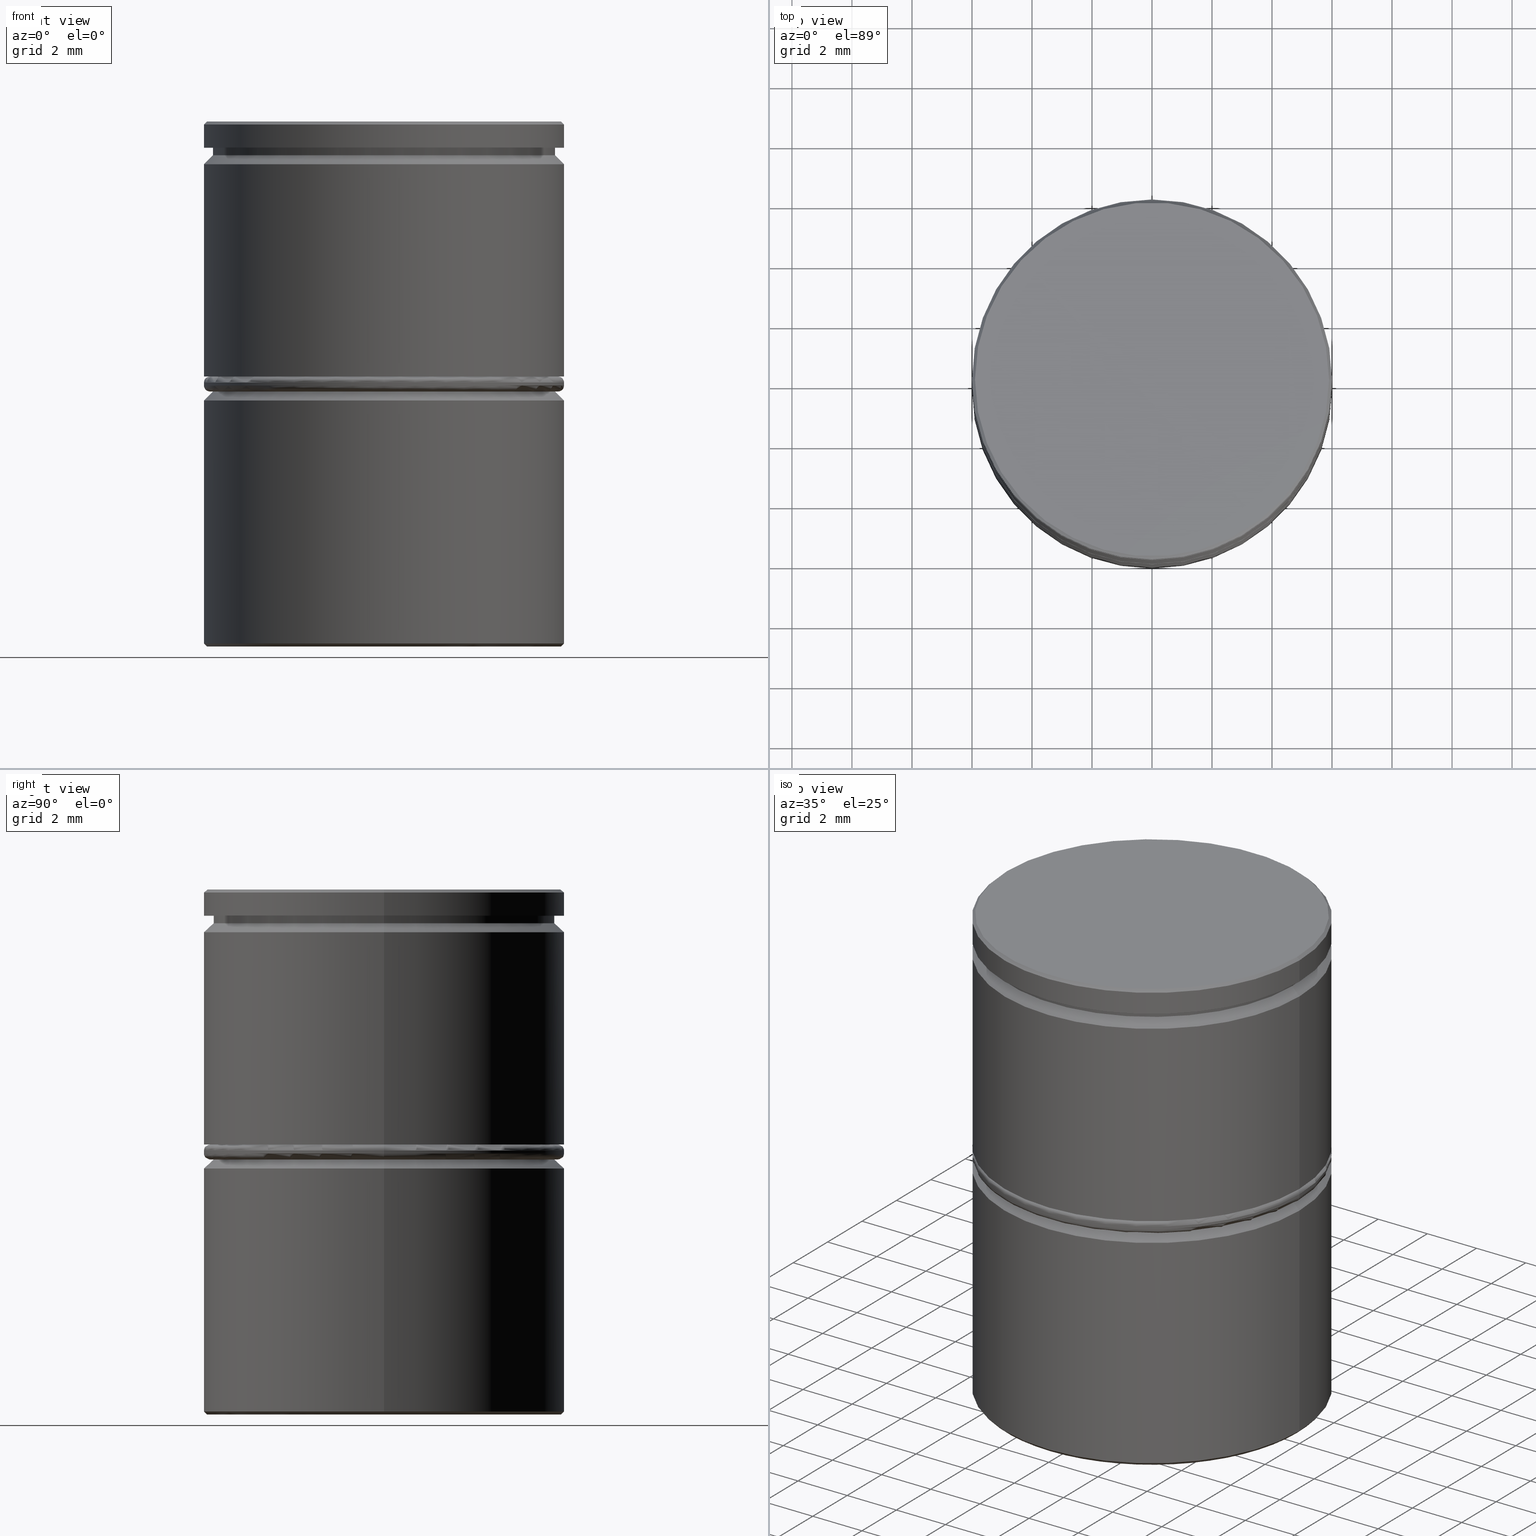
[diagram: canonical four-view strip — front | top / right | iso, engineering-drawing reading convention]
A machine part, canonical four-view strip (front | top / right | iso — engineering-drawing reading convention). The complete STEP part file that produces these views, byte-faithful:
ISO-10303-21;
HEADER;
FILE_DESCRIPTION (( 'STEP AP203' ),
    '1' );
FILE_NAME ('30db.STEP',
    '2023-09-24T09:54:33',
    ( '' ),
    ( '' ),
    'SwSTEP 2.0',
    'SolidWorks 2019',
    '' );
FILE_SCHEMA (( 'CONFIG_CONTROL_DESIGN' ));
ENDSEC;

DATA;
#1 = ORIENTED_EDGE ( 'NONE', *, *, #490, .F. ) ;
#2 = DATE_AND_TIME ( #938, #325 ) ;
#3 = DIRECTION ( 'NONE',  ( -0.7071067811865444641, 0.000000000000000000, -0.7071067811865505703 ) ) ;
#4 = CARTESIAN_POINT ( 'NONE',  ( 0.000000000000000000, 6.000000000000000000, -0.8749999999999998890 ) ) ;
#5 = APPROVAL_DATE_TIME ( #2, #389 ) ;
#6 = CARTESIAN_POINT ( 'NONE',  ( 5.700000000000000178, 0.000000000000000000, -9.000000000000001776 ) ) ;
#7 = DIRECTION ( 'NONE',  ( -1.000000000000000000, 0.000000000000000000, 0.000000000000000000 ) ) ;
#8 = CARTESIAN_POINT ( 'NONE',  ( 0.000000000000000000, 6.000000000000000000, -17.50000000000000000 ) ) ;
#9 = VERTEX_POINT ( 'NONE', #303 ) ;
#10 = PLANE ( 'NONE',  #848 ) ;
#11 = DIRECTION ( 'NONE',  ( -1.000000000000000000, 0.000000000000000000, 0.000000000000000000 ) ) ;
#12 = CARTESIAN_POINT ( 'NONE',  ( -5.100000000000000533, 2.944486372867091806, -16.50000000000000000 ) ) ;
#13 = CIRCLE ( 'NONE', #31, 6.000000000000000000 ) ;
#14 = FACE_BOUND ( 'NONE', #976, .T. ) ;
#15 = EDGE_CURVE ( 'NONE', #9, #772, #148, .T. ) ;
#16 = VECTOR ( 'NONE', #928, 1000.000000000000000 ) ;
#17 = DIRECTION ( 'NONE',  ( -1.000000000000000000, 0.000000000000000000, -0.000000000000000000 ) ) ;
#18 = DIRECTION ( 'NONE',  ( -0.000000000000000000, -0.000000000000000000, 1.000000000000000000 ) ) ;
#19 = DIRECTION ( 'NONE',  ( -0.8660254037844387076, -0.4999999999999998890, 0.000000000000000000 ) ) ;
#20 = ORIENTED_EDGE ( 'NONE', *, *, #322, .T. ) ;
#21 = CARTESIAN_POINT ( 'NONE',  ( 0.000000000000000000, 0.000000000000000000, -8.800000000000002487 ) ) ;
#22 = ORIENTED_EDGE ( 'NONE', *, *, #1020, .T. ) ;
#23 = CARTESIAN_POINT ( 'NONE',  ( 0.000000000000000000, 0.000000000000000000, -9.000000000000001776 ) ) ;
#24 = FACE_OUTER_BOUND ( 'NONE', #809, .T. ) ;
#25 = ORIENTED_EDGE ( 'NONE', *, *, #942, .T. ) ;
#26 = DIRECTION ( 'NONE',  ( -0.000000000000000000, -0.000000000000000000, 1.000000000000000000 ) ) ;
#27 = EDGE_CURVE ( 'NONE', #218, #721, #1006, .T. ) ;
#28 = CARTESIAN_POINT ( 'NONE',  ( 6.000000000000000000, 0.000000000000000000, -8.500000000000000000 ) ) ;
#29 = DIRECTION ( 'NONE',  ( -0.000000000000000000, -0.000000000000000000, -1.000000000000000000 ) ) ;
#30 = VECTOR ( 'NONE', #373, 1000.000000000000000 ) ;
#31 = AXIS2_PLACEMENT_3D ( 'NONE', #257, #565, #177 ) ;
#32 = VECTOR ( 'NONE', #573, 1000.000000000000000 ) ;
#33 = CARTESIAN_POINT ( 'NONE',  ( 0.000000000000000000, 0.000000000000000000, -8.699999999999999289 ) ) ;
#34 = DIRECTION ( 'NONE',  ( -0.000000000000000000, -0.000000000000000000, 1.000000000000000000 ) ) ;
#35 = ORIENTED_EDGE ( 'NONE', *, *, #646, .F. ) ;
#36 = CARTESIAN_POINT ( 'NONE',  ( 6.000000000000000000, 0.000000000000000000, -0.8749999999999998890 ) ) ;
#37 = ORIENTED_EDGE ( 'NONE', *, *, #557, .T. ) ;
#38 = DIRECTION ( 'NONE',  ( 0.000000000000000000, 0.000000000000000000, 1.000000000000000000 ) ) ;
#39 = APPROVAL ( #917, 'NEUR�EN�' ) ;
#40 = ORIENTED_EDGE ( 'NONE', *, *, #435, .T. ) ;
#41 = DIRECTION ( 'NONE',  ( 1.000000000000000000, 0.000000000000000000, 0.000000000000000000 ) ) ;
#42 = EDGE_CURVE ( 'NONE', #913, #546, #564, .T. ) ;
#43 = ORIENTED_EDGE ( 'NONE', *, *, #952, .T. ) ;
#44 =( NAMED_UNIT ( * ) PLANE_ANGLE_UNIT ( ) SI_UNIT ( $, .RADIAN. ) );
#45 = EDGE_LOOP ( 'NONE', ( #311, #534 ) ) ;
#46 = DIRECTION ( 'NONE',  ( 1.000000000000000000, 0.000000000000000000, 0.000000000000000000 ) ) ;
#47 = EDGE_CURVE ( 'NONE', #718, #371, #229, .T. ) ;
#48 = AXIS2_PLACEMENT_3D ( 'NONE', #440, #753, #41 ) ;
#49 = AXIS2_PLACEMENT_3D ( 'NONE', #55, #468, #544 ) ;
#50 = ORGANIZATION ( 'NEUR�EN�', 'NEUR�EN�', '' ) ;
#51 = AXIS2_PLACEMENT_3D ( 'NONE', #86, #486, #258 ) ;
#52 = CIRCLE ( 'NONE', #712, 5.700000000000000178 ) ;
#53 = PERSON_AND_ORGANIZATION ( #200, #50 ) ;
#54 = DIRECTION ( 'NONE',  ( -0.000000000000000000, -0.000000000000000000, -1.000000000000000000 ) ) ;
#55 = CARTESIAN_POINT ( 'NONE',  ( 0.000000000000000000, 0.000000000000000000, -8.500000000000000000 ) ) ;
#56 = APPROVAL ( #637, 'NEUR�EN�' ) ;
#57 = ORIENTED_EDGE ( 'NONE', *, *, #266, .T. ) ;
#58 = ORIENTED_EDGE ( 'NONE', *, *, #506, .F. ) ;
#59 = ORIENTED_EDGE ( 'NONE', *, *, #176, .F. ) ;
#60 = LINE ( 'NONE', #234, #893 ) ;
#61 = VERTEX_POINT ( 'NONE', #536 ) ;
#62 = COORDINATED_UNIVERSAL_TIME_OFFSET ( 1, 0, .AHEAD. ) ;
#63 = DIRECTION ( 'NONE',  ( -1.000000000000000000, 0.000000000000000000, 0.000000000000000000 ) ) ;
#64 = EDGE_CURVE ( 'NONE', #718, #709, #454, .T. ) ;
#65 = FACE_OUTER_BOUND ( 'NONE', #903, .T. ) ;
#66 = AXIS2_PLACEMENT_3D ( 'NONE', #203, #263, #495 ) ;
#67 = PERSON_AND_ORGANIZATION ( #200, #50 ) ;
#68 = LOCAL_TIME ( 11, 54, 33.00000000000000000, #678 ) ;
#69 = EDGE_CURVE ( 'NONE', #227, #852, #457, .T. ) ;
#70 = AXIS2_PLACEMENT_3D ( 'NONE', #864, #1025, #345 ) ;
#71 = DIRECTION ( 'NONE',  ( -0.000000000000000000, -0.000000000000000000, 1.000000000000000000 ) ) ;
#72 = EDGE_LOOP ( 'NONE', ( #419, #314 ) ) ;
#73 = PERSON_AND_ORGANIZATION ( #200, #50 ) ;
#74 = EDGE_CURVE ( 'NONE', #150, #371, #484, .T. ) ;
#75 = DIRECTION ( 'NONE',  ( -1.224646799147353207E-16, 1.000000000000000000, 0.000000000000000000 ) ) ;
#76 = CARTESIAN_POINT ( 'NONE',  ( 6.000000000000000000, 0.000000000000000000, -1.424999999999999156 ) ) ;
#77 = EDGE_CURVE ( 'NONE', #746, #383, #1018, .T. ) ;
#78 = CARTESIAN_POINT ( 'NONE',  ( -6.000000000000000000, 7.347880794884119736E-16, -8.500000000000000000 ) ) ;
#79 = FACE_OUTER_BOUND ( 'NONE', #460, .T. ) ;
#80 = ADVANCED_FACE ( 'NONE', ( #333 ), #350, .F. ) ;
#81 = ORIENTED_EDGE ( 'NONE', *, *, #96, .T. ) ;
#82 = PERSON_AND_ORGANIZATION ( #200, #50 ) ;
#83 = CONICAL_SURFACE ( 'NONE', #1029, 5.900000000000002132, 0.7853981633974439491 ) ;
#84 = AXIS2_PLACEMENT_3D ( 'NONE', #222, #606, #217 ) ;
#85 = CARTESIAN_POINT ( 'NONE',  ( -5.100000000000000533, 2.944486372867091806, -17.50000000000000000 ) ) ;
#86 = CARTESIAN_POINT ( 'NONE',  ( 0.000000000000000000, 0.000000000000000000, -8.500000000000000000 ) ) ;
#87 = VECTOR ( 'NONE', #510, 1000.000000000000114 ) ;
#88 = CARTESIAN_POINT ( 'NONE',  ( 6.000000000000000000, 0.000000000000000000, 0.000000000000000000 ) ) ;
#89 = ADVANCED_FACE ( 'NONE', ( #188 ), #125, .T. ) ;
#90 = VERTEX_POINT ( 'NONE', #794 ) ;
#91 = DIRECTION ( 'NONE',  ( -1.000000000000000000, 0.000000000000000000, 0.000000000000000000 ) ) ;
#92 = DIRECTION ( 'NONE',  ( 0.000000000000000000, 0.000000000000000000, -1.000000000000000000 ) ) ;
#93 = DIRECTION ( 'NONE',  ( -0.000000000000000000, -0.000000000000000000, -1.000000000000000000 ) ) ;
#94 = ORIENTED_EDGE ( 'NONE', *, *, #941, .T. ) ;
#95 = CARTESIAN_POINT ( 'NONE',  ( 0.000000000000000000, 0.000000000000000000, -8.500000000000000000 ) ) ;
#96 = EDGE_CURVE ( 'NONE', #878, #592, #965, .T. ) ;
#97 = DIRECTION ( 'NONE',  ( 1.000000000000000000, 0.000000000000000000, 0.000000000000000000 ) ) ;
#98 = DIRECTION ( 'NONE',  ( 1.000000000000000000, 0.000000000000000000, 0.000000000000000000 ) ) ;
#99 = EDGE_LOOP ( 'NONE', ( #1001, #900, #542, #232 ) ) ;
#100 = CARTESIAN_POINT ( 'NONE',  ( -6.000000000000000000, 7.347880794884119736E-16, -0.8749999999999998890 ) ) ;
#101 = DIRECTION ( 'NONE',  ( 0.7071067811865444641, 8.659560562354897113E-17, -0.7071067811865505703 ) ) ;
#102 = EDGE_CURVE ( 'NONE', #759, #882, #780, .T. ) ;
#103 = FACE_OUTER_BOUND ( 'NONE', #781, .T. ) ;
#104 = EDGE_CURVE ( 'NONE', #709, #718, #601, .T. ) ;
#105 = VECTOR ( 'NONE', #710, 1000.000000000000114 ) ;
#106 = CARTESIAN_POINT ( 'NONE',  ( 0.000000000000000000, 0.000000000000000000, -9.000000000000001776 ) ) ;
#107 = AXIS2_PLACEMENT_3D ( 'NONE', #720, #635, #98 ) ;
#108 = AXIS2_PLACEMENT_3D ( 'NONE', #887, #802, #874 ) ;
#109 = DIRECTION ( 'NONE',  ( -0.000000000000000000, -0.000000000000000000, 1.000000000000000000 ) ) ;
#110 = PRODUCT_DEFINITION ( 'NEZN�M�', '', #124, #1008 ) ;
#111 = DIRECTION ( 'NONE',  ( -0.000000000000000000, -0.000000000000000000, 1.000000000000000000 ) ) ;
#112 = ADVANCED_FACE ( 'NONE', ( #658 ), #178, .T. ) ;
#113 = CARTESIAN_POINT ( 'NONE',  ( -5.100000000000000533, 2.944486372867091806, -16.50000000000000000 ) ) ;
#114 = CARTESIAN_POINT ( 'NONE',  ( 0.000000000000000000, 0.000000000000000000, -9.299999999999991829 ) ) ;
#115 = ORIENTED_EDGE ( 'NONE', *, *, #608, .F. ) ;
#116 = ORIENTED_EDGE ( 'NONE', *, *, #317, .F. ) ;
#117 = CARTESIAN_POINT ( 'NONE',  ( 0.000000000000000000, 0.000000000000000000, -9.000000000000001776 ) ) ;
#118 = ORIENTED_EDGE ( 'NONE', *, *, #253, .T. ) ;
#119 = CARTESIAN_POINT ( 'NONE',  ( -5.100000000000000533, -2.944486372867089585, -16.50000000000000000 ) ) ;
#120 = DIRECTION ( 'NONE',  ( -0.000000000000000000, -0.000000000000000000, 1.000000000000000000 ) ) ;
#121 = ORIENTED_EDGE ( 'NONE', *, *, #905, .F. ) ;
#122 = DIRECTION ( 'NONE',  ( 0.000000000000000000, -1.000000000000000000, 0.000000000000000000 ) ) ;
#123 = AXIS2_PLACEMENT_3D ( 'NONE', #627, #550, #164 ) ;
#124 = PRODUCT_DEFINITION_FORMATION_WITH_SPECIFIED_SOURCE ( 'LIBOVOLN�', '', #438, .NOT_KNOWN. ) ;
#125 = TOROIDAL_SURFACE ( 'NONE', #701, 5.800000000000001599, 0.2000000000000000111 ) ;
#126 = EDGE_CURVE ( 'NONE', #499, #159, #798, .T. ) ;
#127 = EDGE_CURVE ( 'NONE', #150, #727, #652, .T. ) ;
#128 = CARTESIAN_POINT ( 'NONE',  ( 0.000000000000000000, 0.000000000000000000, 0.000000000000000000 ) ) ;
#129 = ORIENTED_EDGE ( 'NONE', *, *, #942, .F. ) ;
#130 = EDGE_CURVE ( 'NONE', #414, #559, #363, .T. ) ;
#131 = CARTESIAN_POINT ( 'NONE',  ( 0.000000000000000000, 0.000000000000000000, 0.000000000000000000 ) ) ;
#132 = CARTESIAN_POINT ( 'NONE',  ( -5.800000000000001599, 7.102951435054649637E-16, -8.800000000000002487 ) ) ;
#133 = ORIENTED_EDGE ( 'NONE', *, *, #253, .F. ) ;
#134 = CARTESIAN_POINT ( 'NONE',  ( 0.000000000000000000, 0.000000000000000000, -1.125000000000000222 ) ) ;
#135 = ORIENTED_EDGE ( 'NONE', *, *, #191, .F. ) ;
#136 = DIRECTION ( 'NONE',  ( 0.000000000000000000, 0.000000000000000000, 1.000000000000000000 ) ) ;
#137 = ADVANCED_FACE ( 'NONE', ( #103 ), #541, .T. ) ;
#138 = DIRECTION ( 'NONE',  ( -1.000000000000000000, 0.000000000000000000, 0.000000000000000000 ) ) ;
#139 = TOROIDAL_SURFACE ( 'NONE', #276, 5.800000000000001599, 0.2000000000000000111 ) ;
#140 = AXIS2_PLACEMENT_3D ( 'NONE', #1031, #237, #939 ) ;
#141 = PRODUCT_DEFINITION_SHAPE ( 'NONE', 'NONE',  #110 ) ;
#142 = EDGE_LOOP ( 'NONE', ( #121, #607, #118, #198 ) ) ;
#143 = APPLICATION_PROTOCOL_DEFINITION ( 'international standard', 'config_control_design', 1994, #420 ) ;
#144 = DIRECTION ( 'NONE',  ( 0.000000000000000000, 0.000000000000000000, -1.000000000000000000 ) ) ;
#145 = CYLINDRICAL_SURFACE ( 'NONE', #894, 6.000000000000000000 ) ;
#146 = ADVANCED_FACE ( 'NONE', ( #897 ), #10, .F. ) ;
#147 = EDGE_LOOP ( 'NONE', ( #595, #696 ) ) ;
#148 = LINE ( 'NONE', #381, #16 ) ;
#149 = DIRECTION ( 'NONE',  ( -0.7071067811865485719, 0.000000000000000000, -0.7071067811865465735 ) ) ;
#150 = VERTEX_POINT ( 'NONE', #181 ) ;
#151 = CYLINDRICAL_SURFACE ( 'NONE', #256, 6.000000000000000000 ) ;
#152 = DIRECTION ( 'NONE',  ( -0.000000000000000000, -1.000000000000000000, -0.000000000000000000 ) ) ;
#153 = ORIENTED_EDGE ( 'NONE', *, *, #987, .T. ) ;
#154 = DATE_TIME_ROLE ( 'creation_date' ) ;
#155 = AXIS2_PLACEMENT_3D ( 'NONE', #260, #161, #398 ) ;
#156 = VECTOR ( 'NONE', #26, 1000.000000000000000 ) ;
#157 = LINE ( 'NONE', #251, #422 ) ;
#158 = EDGE_CURVE ( 'NONE', #746, #691, #196, .T. ) ;
#159 = VERTEX_POINT ( 'NONE', #100 ) ;
#160 = PLANE ( 'NONE',  #123 ) ;
#161 = DIRECTION ( 'NONE',  ( -0.000000000000000000, -0.000000000000000000, 1.000000000000000000 ) ) ;
#162 = EDGE_LOOP ( 'NONE', ( #214, #289, #497, #365 ) ) ;
#163 = CALENDAR_DATE ( 2023, 24, 9 ) ;
#164 = DIRECTION ( 'NONE',  ( -0.8660254037844387076, 0.4999999999999998335, 0.000000000000000000 ) ) ;
#165 = CARTESIAN_POINT ( 'NONE',  ( 0.000000000000000000, 0.000000000000000000, -8.699999999999999289 ) ) ;
#166 = DIRECTION ( 'NONE',  ( -1.000000000000000000, 0.000000000000000000, -0.000000000000000000 ) ) ;
#167 = MANIFOLD_SOLID_BREP ( 'Zaoblit1', #504 ) ;
#168 = COORDINATED_UNIVERSAL_TIME_OFFSET ( 1, 0, .AHEAD. ) ;
#169 = CIRCLE ( 'NONE', #985, 5.800000000000001599 ) ;
#170 = CIRCLE ( 'NONE', #140, 6.000000000000000000 ) ;
#171 = CARTESIAN_POINT ( 'NONE',  ( -8.646952822150503169E-16, -5.888972745734181835, -17.50000000000000000 ) ) ;
#172 = DIRECTION ( 'NONE',  ( 1.000000000000000000, 0.000000000000000000, 0.000000000000000000 ) ) ;
#173 = CC_DESIGN_APPROVAL ( #39, ( #110 ) ) ;
#174 = LINE ( 'NONE', #487, #632 ) ;
#175 = ORIENTED_EDGE ( 'NONE', *, *, #915, .F. ) ;
#176 = EDGE_CURVE ( 'NONE', #431, #935, #421, .T. ) ;
#177 = DIRECTION ( 'NONE',  ( 1.000000000000000000, 0.000000000000000000, 0.000000000000000000 ) ) ;
#178 = CYLINDRICAL_SURFACE ( 'NONE', #442, 6.000000000000000888 ) ;
#179 = CARTESIAN_POINT ( 'NONE',  ( -5.700000000000004619, 0.000000000000000000, -1.125000000000000222 ) ) ;
#180 = ORIENTED_EDGE ( 'NONE', *, *, #77, .T. ) ;
#181 = CARTESIAN_POINT ( 'NONE',  ( -6.000000000000000000, 7.347880794884119736E-16, -17.40000000000000213 ) ) ;
#182 = CARTESIAN_POINT ( 'NONE',  ( 0.000000000000000000, 0.000000000000000000, 0.000000000000000000 ) ) ;
#183 = DIRECTION ( 'NONE',  ( -0.000000000000000000, -0.000000000000000000, -1.000000000000000000 ) ) ;
#184 = ORIENTED_EDGE ( 'NONE', *, *, #47, .F. ) ;
#185 = CARTESIAN_POINT ( 'NONE',  ( 0.000000000000000000, 0.000000000000000000, -9.000000000000001776 ) ) ;
#186 = ORIENTED_EDGE ( 'NONE', *, *, #515, .F. ) ;
#187 = FACE_OUTER_BOUND ( 'NONE', #434, .T. ) ;
#188 = FACE_OUTER_BOUND ( 'NONE', #1009, .T. ) ;
#189 = VERTEX_POINT ( 'NONE', #113 ) ;
#190 = AXIS2_PLACEMENT_3D ( 'NONE', #342, #75, #657 ) ;
#191 = EDGE_CURVE ( 'NONE', #592, #61, #734, .T. ) ;
#192 = DIRECTION ( 'NONE',  ( 1.000000000000000000, 0.000000000000000000, 0.000000000000000000 ) ) ;
#193 = LOCAL_TIME ( 11, 54, 33.00000000000000000, #943 ) ;
#194 = VECTOR ( 'NONE', #370, 1000.000000000000114 ) ;
#195 = VERTEX_POINT ( 'NONE', #353 ) ;
#196 = LINE ( 'NONE', #744, #407 ) ;
#197 = DIRECTION ( 'NONE',  ( 1.000000000000000000, 0.000000000000000000, 0.000000000000000000 ) ) ;
#198 = ORIENTED_EDGE ( 'NONE', *, *, #300, .T. ) ;
#199 = ORIENTED_EDGE ( 'NONE', *, *, #158, .T. ) ;
#200 = PERSON ( 'NEUR�EN�', 'NEUR�EN�', 'NEUR�EN�', ('NEUR�EN�'), ('NEUR�EN�'), ('NEUR�EN�') ) ;
#201 = FACE_OUTER_BOUND ( 'NONE', #1027, .T. ) ;
#202 = ORIENTED_EDGE ( 'NONE', *, *, #941, .F. ) ;
#203 = CARTESIAN_POINT ( 'NONE',  ( 0.000000000000000000, 0.000000000000000000, 0.000000000000000000 ) ) ;
#204 = ORIENTED_EDGE ( 'NONE', *, *, #42, .F. ) ;
#205 = CARTESIAN_POINT ( 'NONE',  ( 5.099999999999999645, 2.944486372867090029, -17.50000000000000000 ) ) ;
#206 = CC_DESIGN_PERSON_AND_ORGANIZATION_ASSIGNMENT ( #73, #782, ( #124 ) ) ;
#207 = LINE ( 'NONE', #745, #437 ) ;
#208 = ORIENTED_EDGE ( 'NONE', *, *, #69, .T. ) ;
#209 = LINE ( 'NONE', #757, #30 ) ;
#210 = CC_DESIGN_APPROVAL ( #56, ( #124 ) ) ;
#211 = VECTOR ( 'NONE', #54, 1000.000000000000000 ) ;
#212 = EDGE_LOOP ( 'NONE', ( #598, #1014, #208, #319 ) ) ;
#213 = DIRECTION ( 'NONE',  ( -0.000000000000000000, -0.000000000000000000, -1.000000000000000000 ) ) ;
#214 = ORIENTED_EDGE ( 'NONE', *, *, #176, .T. ) ;
#215 = DIRECTION ( 'NONE',  ( 1.000000000000000000, 0.000000000000000000, 0.000000000000000000 ) ) ;
#216 = EDGE_LOOP ( 'NONE', ( #22, #284, #585, #569, #791, #477 ) ) ;
#217 = DIRECTION ( 'NONE',  ( 0.000000000000000000, 0.000000000000000000, -1.000000000000000000 ) ) ;
#218 = VERTEX_POINT ( 'NONE', #119 ) ;
#219 = LINE ( 'NONE', #391, #599 ) ;
#220 = ADVANCED_FACE ( 'NONE', ( #358 ), #526, .T. ) ;
#221 = DIRECTION ( 'NONE',  ( 0.7071067811865505703, 0.000000000000000000, 0.7071067811865444641 ) ) ;
#222 = CARTESIAN_POINT ( 'NONE',  ( 5.800000000000001599, 0.000000000000000000, -8.800000000000002487 ) ) ;
#223 = ADVANCED_FACE ( 'NONE', ( #750, #671 ), #990, .T. ) ;
#224 = CONICAL_SURFACE ( 'NONE', #932, 5.700000000000008171, 0.7853981633974497223 ) ;
#225 = AXIS2_PLACEMENT_3D ( 'NONE', #957, #644, #248 ) ;
#226 = ORIENTED_EDGE ( 'NONE', *, *, #800, .T. ) ;
#227 = VERTEX_POINT ( 'NONE', #348 ) ;
#228 = VECTOR ( 'NONE', #19, 1000.000000000000114 ) ;
#229 = LINE ( 'NONE', #773, #896 ) ;
#230 = DIRECTION ( 'NONE',  ( -1.000000000000000000, 0.000000000000000000, 0.000000000000000000 ) ) ;
#231 = ORIENTED_EDGE ( 'NONE', *, *, #966, .F. ) ;
#232 = ORIENTED_EDGE ( 'NONE', *, *, #937, .F. ) ;
#233 = DIRECTION ( 'NONE',  ( 1.000000000000000000, 0.000000000000000000, 0.000000000000000000 ) ) ;
#234 = CARTESIAN_POINT ( 'NONE',  ( -6.000000000000000888, 7.347880794884120722E-16, -25.97056274847714263 ) ) ;
#235 = EDGE_CURVE ( 'NONE', #746, #374, #656, .T. ) ;
#236 = EDGE_CURVE ( 'NONE', #90, #679, #733, .T. ) ;
#237 = DIRECTION ( 'NONE',  ( -0.000000000000000000, -0.000000000000000000, 1.000000000000000000 ) ) ;
#238 = ORIENTED_EDGE ( 'NONE', *, *, #191, .T. ) ;
#239 = VECTOR ( 'NONE', #382, 1000.000000000000000 ) ;
#240 = AXIS2_PLACEMENT_3D ( 'NONE', #462, #136, #1000 ) ;
#241 = VECTOR ( 'NONE', #149, 1000.000000000000000 ) ;
#242 = DIRECTION ( 'NONE',  ( -1.000000000000000000, 0.000000000000000000, 0.000000000000000000 ) ) ;
#243 = DIRECTION ( 'NONE',  ( -1.000000000000000000, 0.000000000000000000, -0.000000000000000000 ) ) ;
#244 = ORIENTED_EDGE ( 'NONE', *, *, #736, .F. ) ;
#245 = PERSON_AND_ORGANIZATION_ROLE ( 'classification_officer' ) ;
#246 = ADVANCED_FACE ( 'NONE', ( #574 ), #708, .T. ) ;
#247 = DIRECTION ( 'NONE',  ( -0.000000000000000000, -0.000000000000000000, -1.000000000000000000 ) ) ;
#248 = DIRECTION ( 'NONE',  ( 1.000000000000000000, 0.000000000000000000, 0.000000000000000000 ) ) ;
#249 = PLANE ( 'NONE',  #649 ) ;
#250 = EDGE_LOOP ( 'NONE', ( #516, #25, #204, #921 ) ) ;
#251 = CARTESIAN_POINT ( 'NONE',  ( 5.099999999999999645, 2.944486372867090029, -16.50000000000000000 ) ) ;
#252 = FACE_OUTER_BOUND ( 'NONE', #360, .T. ) ;
#253 = EDGE_CURVE ( 'NONE', #499, #546, #418, .T. ) ;
#254 = ORIENTED_EDGE ( 'NONE', *, *, #829, .T. ) ;
#255 = CIRCLE ( 'NONE', #582, 6.000000000000000888 ) ;
#256 = AXIS2_PLACEMENT_3D ( 'NONE', #922, #535, #233 ) ;
#257 = CARTESIAN_POINT ( 'NONE',  ( 0.000000000000000000, 0.000000000000000000, -1.424999999999999156 ) ) ;
#258 = DIRECTION ( 'NONE',  ( 1.000000000000000000, 0.000000000000000000, 0.000000000000000000 ) ) ;
#259 = AXIS2_PLACEMENT_3D ( 'NONE', #868, #92, #264 ) ;
#260 = CARTESIAN_POINT ( 'NONE',  ( 0.000000000000000000, 0.000000000000000000, 0.000000000000000000 ) ) ;
#261 = EDGE_CURVE ( 'NONE', #195, #843, #999, .T. ) ;
#262 = VERTEX_POINT ( 'NONE', #76 ) ;
#263 = DIRECTION ( 'NONE',  ( 0.000000000000000000, 0.000000000000000000, -1.000000000000000000 ) ) ;
#264 = DIRECTION ( 'NONE',  ( -1.000000000000000000, 0.000000000000000000, 0.000000000000000000 ) ) ;
#265 = DIRECTION ( 'NONE',  ( -0.000000000000000000, -0.000000000000000000, 1.000000000000000000 ) ) ;
#266 = EDGE_CURVE ( 'NONE', #227, #465, #631, .T. ) ;
#267 = ORIENTED_EDGE ( 'NONE', *, *, #15, .T. ) ;
#268 = CARTESIAN_POINT ( 'NONE',  ( 5.700000000000000178, 0.000000000000000000, 0.000000000000000000 ) ) ;
#269 = ADVANCED_FACE ( 'NONE', ( #790, #947 ), #730, .T. ) ;
#270 = CARTESIAN_POINT ( 'NONE',  ( -5.700000000000000178, 6.980486755139913108E-16, -8.500000000000000000 ) ) ;
#271 = DIRECTION ( 'NONE',  ( 1.000000000000000000, 0.000000000000000000, 0.000000000000000000 ) ) ;
#272 = PLANE ( 'NONE',  #873 ) ;
#273 = ORIENTED_EDGE ( 'NONE', *, *, #806, .F. ) ;
#274 = LINE ( 'NONE', #885, #1030 ) ;
#275 = ADVANCED_FACE ( 'NONE', ( #79 ), #249, .T. ) ;
#276 = AXIS2_PLACEMENT_3D ( 'NONE', #764, #924, #703 ) ;
#277 = ORIENTED_EDGE ( 'NONE', *, *, #557, .F. ) ;
#278 = CONICAL_SURFACE ( 'NONE', #66, 5.900000000000002132, 0.7853981633974439491 ) ;
#279 = FACE_OUTER_BOUND ( 'NONE', #519, .T. ) ;
#280 = VECTOR ( 'NONE', #302, 1000.000000000000000 ) ;
#281 = AXIS2_PLACEMENT_3D ( 'NONE', #12, #343, #711 ) ;
#282 = CARTESIAN_POINT ( 'NONE',  ( 5.099999999999999645, 2.944486372867090029, -16.50000000000000000 ) ) ;
#283 = ADVANCED_FACE ( 'NONE', ( #785 ), #401, .F. ) ;
#284 = ORIENTED_EDGE ( 'NONE', *, *, #724, .T. ) ;
#285 = CARTESIAN_POINT ( 'NONE',  ( 0.000000000000000000, 0.000000000000000000, 0.000000000000000000 ) ) ;
#286 = PLANE ( 'NONE',  #341 ) ;
#287 = CARTESIAN_POINT ( 'NONE',  ( 0.000000000000000000, 0.000000000000000000, -9.000000000000001776 ) ) ;
#288 = ADVANCED_FACE ( 'NONE', ( #558 ), #795, .T. ) ;
#289 = ORIENTED_EDGE ( 'NONE', *, *, #716, .F. ) ;
#290 = CARTESIAN_POINT ( 'NONE',  ( -5.100000000000000533, 2.944486372867091806, -16.50000000000000000 ) ) ;
#291 = ORIENTED_EDGE ( 'NONE', *, *, #130, .T. ) ;
#292 = CARTESIAN_POINT ( 'NONE',  ( -6.000000000000000000, 7.347880794884119736E-16, -17.40000000000000213 ) ) ;
#293 = VECTOR ( 'NONE', #34, 1000.000000000000000 ) ;
#294 = AXIS2_PLACEMENT_3D ( 'NONE', #463, #689, #923 ) ;
#295 = AXIS2_PLACEMENT_3D ( 'NONE', #134, #855, #458 ) ;
#296 = VERTEX_POINT ( 'NONE', #958 ) ;
#297 = DIRECTION ( 'NONE',  ( 0.000000000000000000, 1.000000000000000000, 0.000000000000000000 ) ) ;
#298 = ORIENTED_EDGE ( 'NONE', *, *, #515, .T. ) ;
#299 = CARTESIAN_POINT ( 'NONE',  ( -5.800000000000001599, 0.000000000000000000, -8.699999999999999289 ) ) ;
#300 = EDGE_CURVE ( 'NONE', #546, #913, #763, .T. ) ;
#301 = ORIENTED_EDGE ( 'NONE', *, *, #380, .F. ) ;
#302 = DIRECTION ( 'NONE',  ( 0.000000000000000000, -1.000000000000000000, 0.000000000000000000 ) ) ;
#303 = CARTESIAN_POINT ( 'NONE',  ( 5.099999999999999645, -2.944486372867090918, -16.50000000000000000 ) ) ;
#304 = ADVANCED_FACE ( 'NONE', ( #14, #869 ), #330, .T. ) ;
#305 = DIRECTION ( 'NONE',  ( 0.000000000000000000, 0.000000000000000000, 1.000000000000000000 ) ) ;
#306 = ORIENTED_EDGE ( 'NONE', *, *, #998, .F. ) ;
#307 =( LENGTH_UNIT ( ) NAMED_UNIT ( * ) SI_UNIT ( .MILLI., .METRE. ) );
#308 = CARTESIAN_POINT ( 'NONE',  ( 5.800000000000001599, 0.000000000000000000, -9.000000000000001776 ) ) ;
#309 = AXIS2_PLACEMENT_3D ( 'NONE', #808, #349, #436 ) ;
#310 = AXIS2_PLACEMENT_3D ( 'NONE', #629, #713, #243 ) ;
#311 = ORIENTED_EDGE ( 'NONE', *, *, #261, .T. ) ;
#312 = ORIENTED_EDGE ( 'NONE', *, *, #405, .T. ) ;
#313 =( NAMED_UNIT ( * ) SI_UNIT ( $, .STERADIAN. ) SOLID_ANGLE_UNIT ( ) );
#314 = ORIENTED_EDGE ( 'NONE', *, *, #426, .T. ) ;
#315 = ADVANCED_FACE ( 'NONE', ( #252 ), #562, .T. ) ;
#316 = CARTESIAN_POINT ( 'NONE',  ( -5.700000000000008171, 0.000000000000000000, -9.000000000000001776 ) ) ;
#317 = EDGE_CURVE ( 'NONE', #355, #820, #174, .T. ) ;
#318 = VERTEX_POINT ( 'NONE', #339 ) ;
#319 = ORIENTED_EDGE ( 'NONE', *, *, #937, .T. ) ;
#320 = CARTESIAN_POINT ( 'NONE',  ( -5.100000000000000533, -2.944486372867089585, -17.50000000000000000 ) ) ;
#321 = DIRECTION ( 'NONE',  ( 0.000000000000000000, 0.000000000000000000, 1.000000000000000000 ) ) ;
#322 = EDGE_CURVE ( 'NONE', #691, #727, #538, .T. ) ;
#323 = AXIS2_PLACEMENT_3D ( 'NONE', #548, #931, #849 ) ;
#324 = CONICAL_SURFACE ( 'NONE', #524, 6.000000000000000000, 0.7853981633974526089 ) ;
#325 = LOCAL_TIME ( 11, 54, 33.00000000000000000, #168 ) ;
#326 = AXIS2_PLACEMENT_3D ( 'NONE', #554, #1034, #970 ) ;
#327 = CIRCLE ( 'NONE', #295, 5.700000000000000178 ) ;
#328 = CARTESIAN_POINT ( 'NONE',  ( -5.100000000000000533, 2.944486372867091806, -16.50000000000000000 ) ) ;
#329 = DIRECTION ( 'NONE',  ( -1.000000000000000000, 0.000000000000000000, 0.000000000000000000 ) ) ;
#330 = PLANE ( 'NONE',  #408 ) ;
#331 = EDGE_LOOP ( 'NONE', ( #81, #238, #175, #521 ) ) ;
#332 = DIRECTION ( 'NONE',  ( -0.8660254037844384856, 0.5000000000000002220, 0.000000000000000000 ) ) ;
#333 = FACE_OUTER_BOUND ( 'NONE', #979, .T. ) ;
#334 = DIRECTION ( 'NONE',  ( -1.000000000000000000, 0.000000000000000000, -0.000000000000000000 ) ) ;
#335 = EDGE_LOOP ( 'NONE', ( #1, #620 ) ) ;
#336 = APPLICATION_CONTEXT ( 'configuration controlled 3d designs of mechanical parts and assemblies' ) ;
#337 = DIRECTION ( 'NONE',  ( 0.8660254037844389297, 0.4999999999999995559, 0.000000000000000000 ) ) ;
#338 = DIRECTION ( 'NONE',  ( -0.000000000000000000, -0.000000000000000000, 1.000000000000000000 ) ) ;
#339 = CARTESIAN_POINT ( 'NONE',  ( -5.100000000000000533, 2.944486372867091806, -17.50000000000000000 ) ) ;
#340 = ORIENTED_EDGE ( 'NONE', *, *, #395, .T. ) ;
#341 = AXIS2_PLACEMENT_3D ( 'NONE', #831, #754, #38 ) ;
#342 = CARTESIAN_POINT ( 'NONE',  ( 5.800000000000001599, 7.102951435054649637E-16, -8.699999999999999289 ) ) ;
#343 = DIRECTION ( 'NONE',  ( -0.4999999999999995004, 0.8660254037844389297, 0.000000000000000000 ) ) ;
#344 = VECTOR ( 'NONE', #265, 1000.000000000000000 ) ;
#345 = DIRECTION ( 'NONE',  ( -1.000000000000000000, 0.000000000000000000, 0.000000000000000000 ) ) ;
#346 = EDGE_CURVE ( 'NONE', #592, #821, #880, .T. ) ;
#347 = ORIENTED_EDGE ( 'NONE', *, *, #561, .T. ) ;
#348 = CARTESIAN_POINT ( 'NONE',  ( 6.000000000000000888, 0.000000000000000000, -8.800000000000002487 ) ) ;
#349 = DIRECTION ( 'NONE',  ( -0.000000000000000000, -0.000000000000000000, 1.000000000000000000 ) ) ;
#350 = PLANE ( 'NONE',  #281 ) ;
#351 = LINE ( 'NONE', #988, #799 ) ;
#352 = ORIENTED_EDGE ( 'NONE', *, *, #646, .T. ) ;
#353 = CARTESIAN_POINT ( 'NONE',  ( -5.800000000000001599, 0.000000000000000000, -8.500000000000000000 ) ) ;
#354 = DIRECTION ( 'NONE',  ( -0.000000000000000000, -0.000000000000000000, 1.000000000000000000 ) ) ;
#355 = VERTEX_POINT ( 'NONE', #805 ) ;
#356 = LINE ( 'NONE', #292, #364 ) ;
#357 = ADVANCED_FACE ( 'NONE', ( #279 ), #587, .T. ) ;
#358 = FACE_OUTER_BOUND ( 'NONE', #99, .T. ) ;
#359 = CARTESIAN_POINT ( 'NONE',  ( 5.800000000000001599, 7.225416114969385180E-16, -8.500000000000000000 ) ) ;
#360 = EDGE_LOOP ( 'NONE', ( #58, #918, #662, #891 ) ) ;
#361 = AXIS2_PLACEMENT_3D ( 'NONE', #1012, #71, #412 ) ;
#362 = DIRECTION ( 'NONE',  ( -0.000000000000000000, -0.000000000000000000, 1.000000000000000000 ) ) ;
#363 = CIRCLE ( 'NONE', #551, 5.800000000000001599 ) ;
#364 = VECTOR ( 'NONE', #892, 1000.000000000000000 ) ;
#365 = ORIENTED_EDGE ( 'NONE', *, *, #581, .T. ) ;
#366 = DIRECTION ( 'NONE',  ( 0.000000000000000000, 0.000000000000000000, -1.000000000000000000 ) ) ;
#367 = CARTESIAN_POINT ( 'NONE',  ( -8.646952822150503169E-16, -5.888972745734181835, -16.50000000000000000 ) ) ;
#368 = ORIENTED_EDGE ( 'NONE', *, *, #581, .F. ) ;
#369 = ADVANCED_FACE ( 'NONE', ( #747 ), #272, .F. ) ;
#370 = DIRECTION ( 'NONE',  ( -0.8660254037844387076, -0.4999999999999998890, 0.000000000000000000 ) ) ;
#371 = VERTEX_POINT ( 'NONE', #525 ) ;
#372 = PERSON_AND_ORGANIZATION ( #200, #50 ) ;
#373 = DIRECTION ( 'NONE',  ( -0.000000000000000000, -0.000000000000000000, 1.000000000000000000 ) ) ;
#374 = VERTEX_POINT ( 'NONE', #675 ) ;
#375 = FACE_OUTER_BOUND ( 'NONE', #45, .T. ) ;
#376 = AXIS2_PLACEMENT_3D ( 'NONE', #823, #120, #572 ) ;
#377 = AXIS2_PLACEMENT_3D ( 'NONE', #132, #688, #934 ) ;
#378 = VECTOR ( 'NONE', #670, 1000.000000000000000 ) ;
#379 = AXIS2_PLACEMENT_3D ( 'NONE', #299, #152, #778 ) ;
#380 = EDGE_CURVE ( 'NONE', #355, #218, #498, .T. ) ;
#381 = CARTESIAN_POINT ( 'NONE',  ( 5.099999999999999645, -2.944486372867090918, -16.50000000000000000 ) ) ;
#382 = DIRECTION ( 'NONE',  ( -0.000000000000000000, -0.000000000000000000, 1.000000000000000000 ) ) ;
#383 = VERTEX_POINT ( 'NONE', #993 ) ;
#384 = ORIENTED_EDGE ( 'NONE', *, *, #77, .F. ) ;
#385 = APPLICATION_PROTOCOL_DEFINITION ( 'international standard', 'config_control_design', 1994, #336 ) ;
#386 = CARTESIAN_POINT ( 'NONE',  ( 0.000000000000000000, 0.000000000000000000, -17.40000000000000213 ) ) ;
#387 = CARTESIAN_POINT ( 'NONE',  ( 0.000000000000000000, 0.000000000000000000, 0.000000000000000000 ) ) ;
#388 = ORIENTED_EDGE ( 'NONE', *, *, #126, .F. ) ;
#389 = APPROVAL ( #396, 'NEUR�EN�' ) ;
#390 = ORIENTED_EDGE ( 'NONE', *, *, #104, .F. ) ;
#391 = CARTESIAN_POINT ( 'NONE',  ( 5.700000000000004619, 6.980486755139919025E-16, -1.125000000000000222 ) ) ;
#392 = DIRECTION ( 'NONE',  ( 1.000000000000000000, 0.000000000000000000, 0.000000000000000000 ) ) ;
#393 = VECTOR ( 'NONE', #961, 1000.000000000000000 ) ;
#394 = CARTESIAN_POINT ( 'NONE',  ( 6.000000000000000000, 0.000000000000000000, -0.09999999999999852063 ) ) ;
#395 = EDGE_CURVE ( 'NONE', #559, #414, #169, .T. ) ;
#396 = APPROVAL_STATUS ( 'not_yet_approved' ) ;
#397 = CARTESIAN_POINT ( 'NONE',  ( 5.099999999999999645, -2.944486372867090918, -17.50000000000000000 ) ) ;
#398 = DIRECTION ( 'NONE',  ( 1.000000000000000000, 0.000000000000000000, 0.000000000000000000 ) ) ;
#399 = DATE_AND_TIME ( #722, #193 ) ;
#400 = FACE_OUTER_BOUND ( 'NONE', #162, .T. ) ;
#401 = PLANE ( 'NONE',  #751 ) ;
#402 = TOROIDAL_SURFACE ( 'NONE', #664, 5.800000000000001599, 0.2000000000000000111 ) ;
#403 = EDGE_LOOP ( 'NONE', ( #933, #40, #814, #461 ) ) ;
#404 = AXIS2_PLACEMENT_3D ( 'NONE', #945, #474, #863 ) ;
#405 = EDGE_CURVE ( 'NONE', #709, #150, #356, .T. ) ;
#406 = DATE_TIME_ROLE ( 'classification_date' ) ;
#407 = VECTOR ( 'NONE', #889, 1000.000000000000000 ) ;
#408 = AXIS2_PLACEMENT_3D ( 'NONE', #8, #410, #334 ) ;
#409 = CARTESIAN_POINT ( 'NONE',  ( 0.000000000000000000, 5.888972745734180059, -16.50000000000000000 ) ) ;
#410 = DIRECTION ( 'NONE',  ( 0.000000000000000000, 0.000000000000000000, -1.000000000000000000 ) ) ;
#411 = APPROVAL_DATE_TIME ( #960, #56 ) ;
#412 = DIRECTION ( 'NONE',  ( 1.000000000000000000, 0.000000000000000000, 0.000000000000000000 ) ) ;
#413 = DIRECTION ( 'NONE',  ( 1.000000000000000000, 0.000000000000000000, -0.000000000000000000 ) ) ;
#414 = VERTEX_POINT ( 'NONE', #980 ) ;
#415 = CC_DESIGN_PERSON_AND_ORGANIZATION_ASSIGNMENT ( #372, #547, ( #110 ) ) ;
#416 = CARTESIAN_POINT ( 'NONE',  ( 6.000000000000000000, 0.000000000000000000, -9.299999999999991829 ) ) ;
#417 = ADVANCED_FACE ( 'NONE', ( #201 ), #860, .T. ) ;
#418 = LINE ( 'NONE', #88, #344 ) ;
#419 = ORIENTED_EDGE ( 'NONE', *, *, #608, .T. ) ;
#420 = APPLICATION_CONTEXT ( 'configuration controlled 3d designs of mechanical parts and assemblies' ) ;
#421 = LINE ( 'NONE', #650, #87 ) ;
#422 = VECTOR ( 'NONE', #247, 1000.000000000000000 ) ;
#423 = CARTESIAN_POINT ( 'NONE',  ( 6.000000000000000888, 0.000000000000000000, -8.699999999999999289 ) ) ;
#424 = CARTESIAN_POINT ( 'NONE',  ( 0.000000000000000000, 0.000000000000000000, -17.40000000000000213 ) ) ;
#425 = EDGE_LOOP ( 'NONE', ( #340, #291 ) ) ;
#426 = EDGE_CURVE ( 'NONE', #954, #374, #52, .T. ) ;
#427 = CARTESIAN_POINT ( 'NONE',  ( 0.000000000000000000, 0.000000000000000000, -8.500000000000000000 ) ) ;
#428 = DIRECTION ( 'NONE',  ( 1.000000000000000000, 0.000000000000000000, 0.000000000000000000 ) ) ;
#429 = CARTESIAN_POINT ( 'NONE',  ( -6.000000000000000888, 7.347880794884120722E-16, -8.800000000000002487 ) ) ;
#430 = EDGE_CURVE ( 'NONE', #9, #355, #600, .T. ) ;
#431 = VERTEX_POINT ( 'NONE', #833 ) ;
#432 = DIRECTION ( 'NONE',  ( -0.000000000000000000, -0.000000000000000000, 1.000000000000000000 ) ) ;
#433 = DIRECTION ( 'NONE',  ( 0.000000000000000000, 0.000000000000000000, -1.000000000000000000 ) ) ;
#434 = EDGE_LOOP ( 'NONE', ( #851, #633, #301, #925 ) ) ;
#435 = EDGE_CURVE ( 'NONE', #383, #746, #580, .T. ) ;
#436 = DIRECTION ( 'NONE',  ( 1.000000000000000000, 0.000000000000000000, 0.000000000000000000 ) ) ;
#437 = VECTOR ( 'NONE', #354, 1000.000000000000000 ) ;
#438 = PRODUCT ( '30db', '30db', '', ( #450 ) ) ;
#439 = CIRCLE ( 'NONE', #376, 6.000000000000000000 ) ;
#440 = CARTESIAN_POINT ( 'NONE',  ( 0.000000000000000000, 0.000000000000000000, -8.500000000000000000 ) ) ;
#441 = APPROVAL_PERSON_ORGANIZATION ( #67, #56, #478 ) ;
#442 = AXIS2_PLACEMENT_3D ( 'NONE', #725, #338, #962 ) ;
#443 = ORIENTED_EDGE ( 'NONE', *, *, #405, .F. ) ;
#444 = DIRECTION ( 'NONE',  ( -0.5000000000000003331, -0.8660254037844385966, 0.000000000000000000 ) ) ;
#445 = ORIENTED_EDGE ( 'NONE', *, *, #64, .F. ) ;
#446 = CARTESIAN_POINT ( 'NONE',  ( -8.646952822150503169E-16, -5.888972745734181835, -16.50000000000000000 ) ) ;
#447 = ORIENTED_EDGE ( 'NONE', *, *, #952, .F. ) ;
#448 = CARTESIAN_POINT ( 'NONE',  ( 0.000000000000000000, 5.888972745734180059, -16.50000000000000000 ) ) ;
#449 = ORIENTED_EDGE ( 'NONE', *, *, #74, .T. ) ;
#450 = MECHANICAL_CONTEXT ( 'NONE', #336, 'mechanical' ) ;
#451 = VECTOR ( 'NONE', #122, 1000.000000000000000 ) ;
#452 = CARTESIAN_POINT ( 'NONE',  ( -5.700000000000000178, 6.980486755139913108E-16, -1.125000000000000222 ) ) ;
#453 = CONICAL_SURFACE ( 'NONE', #858, 5.700000000000004619, 0.7853981633974425058 ) ;
#454 = CIRCLE ( 'NONE', #666, 5.899999999999999467 ) ;
#455 = ORIENTED_EDGE ( 'NONE', *, *, #490, .T. ) ;
#456 = APPROVAL_ROLE ( '' ) ;
#457 = LINE ( 'NONE', #693, #877 ) ;
#458 = DIRECTION ( 'NONE',  ( 1.000000000000000000, 0.000000000000000000, 0.000000000000000000 ) ) ;
#459 = ADVANCED_FACE ( 'NONE', ( #977 ), #737, .T. ) ;
#460 = EDGE_LOOP ( 'NONE', ( #641, #940 ) ) ;
#461 = ORIENTED_EDGE ( 'NONE', *, *, #426, .F. ) ;
#462 = CARTESIAN_POINT ( 'NONE',  ( 0.000000000000000000, 0.000000000000000000, 0.000000000000000000 ) ) ;
#463 = CARTESIAN_POINT ( 'NONE',  ( 0.000000000000000000, 0.000000000000000000, -0.09999999999999852063 ) ) ;
#464 = FACE_OUTER_BOUND ( 'NONE', #250, .T. ) ;
#465 = VERTEX_POINT ( 'NONE', #429 ) ;
#466 = PERSON_AND_ORGANIZATION ( #200, #50 ) ;
#467 = EDGE_CURVE ( 'NONE', #772, #820, #822, .T. ) ;
#468 = DIRECTION ( 'NONE',  ( -0.000000000000000000, -0.000000000000000000, 1.000000000000000000 ) ) ;
#469 = VECTOR ( 'NONE', #332, 1000.000000000000114 ) ;
#470 = EDGE_LOOP ( 'NONE', ( #57, #347, #588, #994 ) ) ;
#471 = DATE_AND_TIME ( #950, #68 ) ;
#472 = DIRECTION ( 'NONE',  ( -0.000000000000000000, -0.000000000000000000, 1.000000000000000000 ) ) ;
#473 = ORIENTED_EDGE ( 'NONE', *, *, #430, .F. ) ;
#474 = DIRECTION ( 'NONE',  ( -0.000000000000000000, -0.000000000000000000, 1.000000000000000000 ) ) ;
#475 = DIRECTION ( 'NONE',  ( 1.000000000000000000, 0.000000000000000000, 0.000000000000000000 ) ) ;
#476 = EDGE_CURVE ( 'NONE', #882, #262, #351, .T. ) ;
#477 = ORIENTED_EDGE ( 'NONE', *, *, #806, .T. ) ;
#478 = APPROVAL_ROLE ( '' ) ;
#479 = LINE ( 'NONE', #793, #105 ) ;
#480 = DIRECTION ( 'NONE',  ( 1.000000000000000000, 0.000000000000000000, 0.000000000000000000 ) ) ;
#481 = ADVANCED_FACE ( 'NONE', ( #24 ), #224, .T. ) ;
#482 = VECTOR ( 'NONE', #901, 1000.000000000000114 ) ;
#483 = AXIS2_PLACEMENT_3D ( 'NONE', #556, #872, #242 ) ;
#484 = CIRCLE ( 'NONE', #1033, 6.000000000000000000 ) ;
#485 = CARTESIAN_POINT ( 'NONE',  ( 5.700000000000000178, 0.000000000000000000, 0.000000000000000000 ) ) ;
#486 = DIRECTION ( 'NONE',  ( -0.000000000000000000, -0.000000000000000000, 1.000000000000000000 ) ) ;
#487 = CARTESIAN_POINT ( 'NONE',  ( -8.646952822150503169E-16, -5.888972745734181835, -16.50000000000000000 ) ) ;
#488 = EDGE_CURVE ( 'NONE', #935, #772, #904, .T. ) ;
#489 = ORIENTED_EDGE ( 'NONE', *, *, #467, .F. ) ;
#490 = EDGE_CURVE ( 'NONE', #882, #759, #686, .T. ) ;
#491 = CARTESIAN_POINT ( 'NONE',  ( -6.000000000000000000, 7.347880794884119736E-16, -1.424999999999999156 ) ) ;
#492 = DIRECTION ( 'NONE',  ( -0.000000000000000000, -0.000000000000000000, 1.000000000000000000 ) ) ;
#493 = DIRECTION ( 'NONE',  ( -0.7071067811865434649, 0.000000000000000000, -0.7071067811865516806 ) ) ;
#494 = ORIENTED_EDGE ( 'NONE', *, *, #130, .F. ) ;
#495 = DIRECTION ( 'NONE',  ( -1.000000000000000000, 0.000000000000000000, 0.000000000000000000 ) ) ;
#496 = DIRECTION ( 'NONE',  ( 1.000000000000000000, 0.000000000000000000, 0.000000000000000000 ) ) ;
#497 = ORIENTED_EDGE ( 'NONE', *, *, #724, .F. ) ;
#498 = LINE ( 'NONE', #446, #482 ) ;
#499 = VERTEX_POINT ( 'NONE', #36 ) ;
#500 = AXIS2_PLACEMENT_3D ( 'NONE', #287, #825, #818 ) ;
#501 = CARTESIAN_POINT ( 'NONE',  ( -5.700000000000000178, 6.980486755139913108E-16, 0.000000000000000000 ) ) ;
#502 = CIRCLE ( 'NONE', #483, 6.000000000000000888 ) ;
#503 = APPROVAL_PERSON_ORGANIZATION ( #466, #39, #456 ) ;
#504 = CLOSED_SHELL ( 'NONE', ( #570, #89, #677, #537, #112, #283, #220, #596 ) ) ;
#505 = DIRECTION ( 'NONE',  ( 1.000000000000000000, 0.000000000000000000, 0.000000000000000000 ) ) ;
#506 = EDGE_CURVE ( 'NONE', #759, #821, #209, .T. ) ;
#507 = EDGE_LOOP ( 'NONE', ( #602, #824, #614, #549 ) ) ;
#508 = AXIS2_PLACEMENT_3D ( 'NONE', #285, #659, #192 ) ;
#509 = DIRECTION ( 'NONE',  ( 0.000000000000000000, 0.000000000000000000, -1.000000000000000000 ) ) ;
#510 = DIRECTION ( 'NONE',  ( 0.8660254037844387076, -0.4999999999999998890, 0.000000000000000000 ) ) ;
#511 = CARTESIAN_POINT ( 'NONE',  ( 0.000000000000000000, 0.000000000000000000, -17.40000000000000213 ) ) ;
#512 = ORIENTED_EDGE ( 'NONE', *, *, #467, .T. ) ;
#513 = ORIENTED_EDGE ( 'NONE', *, *, #1004, .F. ) ;
#514 = DIRECTION ( 'NONE',  ( 1.000000000000000000, 0.000000000000000000, 0.000000000000000000 ) ) ;
#515 = EDGE_CURVE ( 'NONE', #383, #727, #680, .T. ) ;
#516 = ORIENTED_EDGE ( 'NONE', *, *, #236, .F. ) ;
#517 = DIRECTION ( 'NONE',  ( 0.8660254037844387076, 0.4999999999999998335, 0.000000000000000000 ) ) ;
#518 = CARTESIAN_POINT ( 'NONE',  ( 5.700000000000000178, 0.000000000000000000, -1.125000000000000222 ) ) ;
#519 = EDGE_LOOP ( 'NONE', ( #702, #449, #94, #20 ) ) ;
#520 = DIRECTION ( 'NONE',  ( 1.000000000000000000, 0.000000000000000000, -0.000000000000000000 ) ) ;
#521 = ORIENTED_EDGE ( 'NONE', *, *, #789, .F. ) ;
#522 = FACE_OUTER_BOUND ( 'NONE', #403, .T. ) ;
#523 = EDGE_LOOP ( 'NONE', ( #992, #575 ) ) ;
#524 = AXIS2_PLACEMENT_3D ( 'NONE', #511, #432, #428 ) ;
#525 = CARTESIAN_POINT ( 'NONE',  ( 6.000000000000000000, 0.000000000000000000, -17.40000000000000213 ) ) ;
#526 = TOROIDAL_SURFACE ( 'NONE', #912, 5.800000000000001599, 0.2000000000000000111 ) ;
#527 = FACE_OUTER_BOUND ( 'NONE', #579, .T. ) ;
#528 = ADVANCED_FACE ( 'NONE', ( #464 ), #83, .T. ) ;
#529 = CARTESIAN_POINT ( 'NONE',  ( 0.000000000000000000, 0.000000000000000000, -8.500000000000000000 ) ) ;
#530 = ORIENTED_EDGE ( 'NONE', *, *, #827, .F. ) ;
#531 = ORIENTED_EDGE ( 'NONE', *, *, #126, .T. ) ;
#532 = DIRECTION ( 'NONE',  ( -0.000000000000000000, -0.000000000000000000, 1.000000000000000000 ) ) ;
#533 = ORIENTED_EDGE ( 'NONE', *, *, #905, .T. ) ;
#534 = ORIENTED_EDGE ( 'NONE', *, *, #827, .T. ) ;
#535 = DIRECTION ( 'NONE',  ( -0.000000000000000000, -0.000000000000000000, 1.000000000000000000 ) ) ;
#536 = CARTESIAN_POINT ( 'NONE',  ( -5.700000000000000178, 6.980486755139913108E-16, -0.8749999999999998890 ) ) ;
#537 = ADVANCED_FACE ( 'NONE', ( #375 ), #770, .F. ) ;
#538 = CIRCLE ( 'NONE', #628, 6.000000000000000000 ) ;
#539 = LINE ( 'NONE', #936, #239 ) ;
#540 = CIRCLE ( 'NONE', #309, 5.700000000000000178 ) ;
#541 = CONICAL_SURFACE ( 'NONE', #684, 6.000000000000000000, 0.7853981633974526089 ) ;
#542 = ORIENTED_EDGE ( 'NONE', *, *, #586, .T. ) ;
#543 = ORIENTED_EDGE ( 'NONE', *, *, #756, .T. ) ;
#544 = DIRECTION ( 'NONE',  ( 1.000000000000000000, 0.000000000000000000, 0.000000000000000000 ) ) ;
#545 = EDGE_CURVE ( 'NONE', #262, #821, #1035, .T. ) ;
#546 = VERTEX_POINT ( 'NONE', #394 ) ;
#547 = PERSON_AND_ORGANIZATION_ROLE ( 'creator' ) ;
#548 = CARTESIAN_POINT ( 'NONE',  ( 0.000000000000000000, 0.000000000000000000, -1.424999999999999156 ) ) ;
#549 = ORIENTED_EDGE ( 'NONE', *, *, #716, .T. ) ;
#550 = DIRECTION ( 'NONE',  ( 0.4999999999999998335, 0.8660254037844387076, -0.000000000000000000 ) ) ;
#551 = AXIS2_PLACEMENT_3D ( 'NONE', #886, #183, #496 ) ;
#552 = CC_DESIGN_PERSON_AND_ORGANIZATION_ASSIGNMENT ( #53, #604, ( #438 ) ) ;
#553 = CARTESIAN_POINT ( 'NONE',  ( -6.000000000000000000, 7.347880794884119736E-16, -9.299999999999991829 ) ) ;
#554 = CARTESIAN_POINT ( 'NONE',  ( 0.000000000000000000, 0.000000000000000000, -0.09999999999999852063 ) ) ;
#555 = ORIENTED_EDGE ( 'NONE', *, *, #784, .T. ) ;
#556 = CARTESIAN_POINT ( 'NONE',  ( 0.000000000000000000, 0.000000000000000000, -8.699999999999999289 ) ) ;
#557 = EDGE_CURVE ( 'NONE', #592, #878, #327, .T. ) ;
#558 = FACE_OUTER_BOUND ( 'NONE', #216, .T. ) ;
#559 = VERTEX_POINT ( 'NONE', #308 ) ;
#560 = LINE ( 'NONE', #171, #469 ) ;
#561 = EDGE_CURVE ( 'NONE', #465, #739, #60, .T. ) ;
#562 = CYLINDRICAL_SURFACE ( 'NONE', #108, 6.000000000000000000 ) ;
#563 = AXIS2_PLACEMENT_3D ( 'NONE', #920, #532, #841 ) ;
#564 = CIRCLE ( 'NONE', #294, 6.000000000000000000 ) ;
#565 = DIRECTION ( 'NONE',  ( 0.000000000000000000, 0.000000000000000000, -1.000000000000000000 ) ) ;
#566 = CARTESIAN_POINT ( 'NONE',  ( 0.000000000000000000, 0.000000000000000000, -0.8749999999999998890 ) ) ;
#567 = DIRECTION ( 'NONE',  ( 1.000000000000000000, 0.000000000000000000, 0.000000000000000000 ) ) ;
#568 = ORIENTED_EDGE ( 'NONE', *, *, #235, .F. ) ;
#569 = ORIENTED_EDGE ( 'NONE', *, *, #430, .T. ) ;
#570 = ADVANCED_FACE ( 'NONE', ( #837 ), #139, .T. ) ;
#571 = DIRECTION ( 'NONE',  ( 0.000000000000000000, 0.000000000000000000, -1.000000000000000000 ) ) ;
#572 = DIRECTION ( 'NONE',  ( -1.000000000000000000, 0.000000000000000000, 0.000000000000000000 ) ) ;
#573 = DIRECTION ( 'NONE',  ( -0.000000000000000000, -0.000000000000000000, 1.000000000000000000 ) ) ;
#574 = FACE_OUTER_BOUND ( 'NONE', #655, .T. ) ;
#575 = ORIENTED_EDGE ( 'NONE', *, *, #104, .T. ) ;
#576 = FACE_OUTER_BOUND ( 'NONE', #331, .T. ) ;
#577 = ORIENTED_EDGE ( 'NONE', *, *, #660, .F. ) ;
#578 = CARTESIAN_POINT ( 'NONE',  ( 0.000000000000000000, 0.000000000000000000, -1.125000000000000222 ) ) ;
#579 = EDGE_LOOP ( 'NONE', ( #531, #533, #748, #133 ) ) ;
#580 = CIRCLE ( 'NONE', #500, 5.700000000000000178 ) ;
#581 = EDGE_CURVE ( 'NONE', #786, #431, #1007, .T. ) ;
#582 = AXIS2_PLACEMENT_3D ( 'NONE', #21, #584, #197 ) ;
#583 = AXIS2_PLACEMENT_3D ( 'NONE', #23, #729, #172 ) ;
#584 = DIRECTION ( 'NONE',  ( 0.000000000000000000, 0.000000000000000000, 1.000000000000000000 ) ) ;
#585 = ORIENTED_EDGE ( 'NONE', *, *, #1023, .T. ) ;
#586 = EDGE_CURVE ( 'NONE', #195, #739, #845, .T. ) ;
#587 = CYLINDRICAL_SURFACE ( 'NONE', #508, 6.000000000000000000 ) ;
#588 = ORIENTED_EDGE ( 'NONE', *, *, #738, .T. ) ;
#589 = FACE_OUTER_BOUND ( 'NONE', #767, .T. ) ;
#590 = ORIENTED_EDGE ( 'NONE', *, *, #506, .T. ) ;
#591 = DIRECTION ( 'NONE',  ( -1.000000000000000000, 0.000000000000000000, 0.000000000000000000 ) ) ;
#592 = VERTEX_POINT ( 'NONE', #452 ) ;
#593 = LINE ( 'NONE', #974, #293 ) ;
#594 = DIRECTION ( 'NONE',  ( 1.000000000000000000, 0.000000000000000000, 0.000000000000000000 ) ) ;
#595 = ORIENTED_EDGE ( 'NONE', *, *, #915, .T. ) ;
#596 = ADVANCED_FACE ( 'NONE', ( #1022 ), #402, .T. ) ;
#597 = CYLINDRICAL_SURFACE ( 'NONE', #815, 6.000000000000000000 ) ;
#598 = ORIENTED_EDGE ( 'NONE', *, *, #561, .F. ) ;
#599 = VECTOR ( 'NONE', #760, 1000.000000000000000 ) ;
#600 = LINE ( 'NONE', #742, #194 ) ;
#601 = CIRCLE ( 'NONE', #259, 5.899999999999999467 ) ;
#602 = ORIENTED_EDGE ( 'NONE', *, *, #488, .T. ) ;
#603 = ADVANCED_FACE ( 'NONE', ( #65 ), #615, .T. ) ;
#604 = PERSON_AND_ORGANIZATION_ROLE ( 'design_owner' ) ;
#605 = ORIENTED_EDGE ( 'NONE', *, *, #488, .F. ) ;
#606 = DIRECTION ( 'NONE',  ( 0.000000000000000000, -1.000000000000000000, 0.000000000000000000 ) ) ;
#607 = ORIENTED_EDGE ( 'NONE', *, *, #736, .T. ) ;
#608 = EDGE_CURVE ( 'NONE', #374, #954, #926, .T. ) ;
#609 = DIRECTION ( 'NONE',  ( -0.000000000000000000, -0.000000000000000000, 1.000000000000000000 ) ) ;
#610 = CARTESIAN_POINT ( 'NONE',  ( -5.100000000000000533, -2.944486372867089585, -16.50000000000000000 ) ) ;
#611 = DIRECTION ( 'NONE',  ( -0.000000000000000000, -0.000000000000000000, 1.000000000000000000 ) ) ;
#612 = EDGE_LOOP ( 'NONE', ( #513, #705, #352, #231 ) ) ;
#613 = LINE ( 'NONE', #1010, #796 ) ;
#614 = ORIENTED_EDGE ( 'NONE', *, *, #1023, .F. ) ;
#615 = CONICAL_SURFACE ( 'NONE', #948, 5.700000000000008171, 0.7853981633974497223 ) ;
#616 = DIRECTION ( 'NONE',  ( -1.000000000000000000, 0.000000000000000000, -0.000000000000000000 ) ) ;
#617 = CIRCLE ( 'NONE', #190, 0.1999999999999996503 ) ;
#618 = AXIS2_PLACEMENT_3D ( 'NONE', #4, #953, #166 ) ;
#619 = ORIENTED_EDGE ( 'NONE', *, *, #74, .F. ) ;
#620 = ORIENTED_EDGE ( 'NONE', *, *, #102, .F. ) ;
#621 = DATE_AND_TIME ( #692, #984 ) ;
#622 = CARTESIAN_POINT ( 'NONE',  ( 0.000000000000000000, 0.000000000000000000, -8.800000000000002487 ) ) ;
#623 = EDGE_LOOP ( 'NONE', ( #775, #916, #43, #202 ) ) ;
#624 = DIRECTION ( 'NONE',  ( 0.000000000000000000, 0.000000000000000000, -1.000000000000000000 ) ) ;
#625 = CC_DESIGN_DATE_AND_TIME_ASSIGNMENT ( #471, #154, ( #110 ) ) ;
#626 = ORIENTED_EDGE ( 'NONE', *, *, #300, .F. ) ;
#627 = CARTESIAN_POINT ( 'NONE',  ( 0.000000000000000000, 5.888972745734180059, -16.50000000000000000 ) ) ;
#628 = AXIS2_PLACEMENT_3D ( 'NONE', #653, #645, #567 ) ;
#629 = CARTESIAN_POINT ( 'NONE',  ( 0.000000000000000000, 0.000000000000000000, -16.50000000000000000 ) ) ;
#630 = VECTOR ( 'NONE', #472, 1000.000000000000000 ) ;
#631 = CIRCLE ( 'NONE', #107, 6.000000000000000888 ) ;
#632 = VECTOR ( 'NONE', #93, 1000.000000000000000 ) ;
#633 = ORIENTED_EDGE ( 'NONE', *, *, #27, .F. ) ;
#634 = LINE ( 'NONE', #328, #982 ) ;
#635 = DIRECTION ( 'NONE',  ( 0.000000000000000000, 0.000000000000000000, 1.000000000000000000 ) ) ;
#636 = ORIENTED_EDGE ( 'NONE', *, *, #96, .F. ) ;
#637 = APPROVAL_STATUS ( 'not_yet_approved' ) ;
#638 = ADVANCED_FACE ( 'NONE', ( #1002 ), #145, .T. ) ;
#639 = LINE ( 'NONE', #643, #393 ) ;
#640 = CARTESIAN_POINT ( 'NONE',  ( 0.000000000000000000, 0.000000000000000000, 0.000000000000000000 ) ) ;
#641 = ORIENTED_EDGE ( 'NONE', *, *, #660, .T. ) ;
#642 = PERSON_AND_ORGANIZATION ( #200, #50 ) ;
#643 = CARTESIAN_POINT ( 'NONE',  ( -5.100000000000000533, -2.944486372867089585, -16.50000000000000000 ) ) ;
#644 = DIRECTION ( 'NONE',  ( -0.000000000000000000, -0.000000000000000000, 1.000000000000000000 ) ) ;
#645 = DIRECTION ( 'NONE',  ( 0.000000000000000000, 0.000000000000000000, -1.000000000000000000 ) ) ;
#646 = EDGE_CURVE ( 'NONE', #559, #227, #944, .T. ) ;
#647 = ORIENTED_EDGE ( 'NONE', *, *, #784, .F. ) ;
#648 = SECURITY_CLASSIFICATION ( '', '', #955 ) ;
#649 = AXIS2_PLACEMENT_3D ( 'NONE', #640, #726, #480 ) ;
#650 = CARTESIAN_POINT ( 'NONE',  ( 0.000000000000000000, 5.888972745734180059, -17.50000000000000000 ) ) ;
#651 = FACE_OUTER_BOUND ( 'NONE', #861, .T. ) ;
#652 = LINE ( 'NONE', #969, #32 ) ;
#653 = CARTESIAN_POINT ( 'NONE',  ( 0.000000000000000000, 0.000000000000000000, -9.299999999999991829 ) ) ;
#654 = ORIENTED_EDGE ( 'NONE', *, *, #756, .F. ) ;
#655 = EDGE_LOOP ( 'NONE', ( #180, #844, #115, #568 ) ) ;
#656 = LINE ( 'NONE', #268, #378 ) ;
#657 = DIRECTION ( 'NONE',  ( -1.000000000000000000, -1.224646799147353454E-16, 0.000000000000000000 ) ) ;
#658 = FACE_OUTER_BOUND ( 'NONE', #212, .T. ) ;
#659 = DIRECTION ( 'NONE',  ( -0.000000000000000000, -0.000000000000000000, 1.000000000000000000 ) ) ;
#660 = EDGE_CURVE ( 'NONE', #679, #90, #1015, .T. ) ;
#661 = CARTESIAN_POINT ( 'NONE',  ( 5.099999999999999645, 2.944486372867090029, -17.50000000000000000 ) ) ;
#662 = ORIENTED_EDGE ( 'NONE', *, *, #476, .T. ) ;
#663 = CARTESIAN_POINT ( 'NONE',  ( 5.099999999999999645, 2.944486372867090029, -16.50000000000000000 ) ) ;
#664 = AXIS2_PLACEMENT_3D ( 'NONE', #622, #305, #392 ) ;
#665 = CIRCLE ( 'NONE', #761, 6.000000000000000888 ) ;
#666 = AXIS2_PLACEMENT_3D ( 'NONE', #846, #144, #63 ) ;
#667 = CYLINDRICAL_SURFACE ( 'NONE', #682, 5.700000000000000178 ) ;
#668 = AXIS2_PLACEMENT_3D ( 'NONE', #131, #669, #514 ) ;
#669 = DIRECTION ( 'NONE',  ( -0.000000000000000000, -0.000000000000000000, 1.000000000000000000 ) ) ;
#670 = DIRECTION ( 'NONE',  ( -0.000000000000000000, -0.000000000000000000, 1.000000000000000000 ) ) ;
#671 = FACE_OUTER_BOUND ( 'NONE', #335, .T. ) ;
#672 = FACE_OUTER_BOUND ( 'NONE', #949, .T. ) ;
#673 = EDGE_CURVE ( 'NONE', #383, #954, #539, .T. ) ;
#674 = EDGE_LOOP ( 'NONE', ( #636, #153, #853, #755 ) ) ;
#675 = CARTESIAN_POINT ( 'NONE',  ( 5.700000000000000178, 0.000000000000000000, -8.500000000000000000 ) ) ;
#676 = ORIENTED_EDGE ( 'NONE', *, *, #987, .F. ) ;
#677 = ADVANCED_FACE ( 'NONE', ( #690 ), #695, .T. ) ;
#678 = COORDINATED_UNIVERSAL_TIME_OFFSET ( 1, 0, .AHEAD. ) ;
#679 = VERTEX_POINT ( 'NONE', #1024 ) ;
#680 = LINE ( 'NONE', #316, #241 ) ;
#681 = ORIENTED_EDGE ( 'NONE', *, *, #435, .F. ) ;
#682 = AXIS2_PLACEMENT_3D ( 'NONE', #128, #109, #817 ) ;
#683 =( GEOMETRIC_REPRESENTATION_CONTEXT ( 3 ) GLOBAL_UNCERTAINTY_ASSIGNED_CONTEXT ( ( #838 ) ) GLOBAL_UNIT_ASSIGNED_CONTEXT ( ( #307, #44, #313 ) ) REPRESENTATION_CONTEXT ( 'NONE', 'WORKASPACE' ) );
#684 = AXIS2_PLACEMENT_3D ( 'NONE', #424, #975, #271 ) ;
#685 = CARTESIAN_POINT ( 'NONE',  ( 0.000000000000000000, 0.000000000000000000, 0.000000000000000000 ) ) ;
#686 = CIRCLE ( 'NONE', #48, 6.000000000000000000 ) ;
#687 = ORIENTED_EDGE ( 'NONE', *, *, #1020, .F. ) ;
#688 = DIRECTION ( 'NONE',  ( 1.224646799147353207E-16, 1.000000000000000000, -0.000000000000000000 ) ) ;
#689 = DIRECTION ( 'NONE',  ( 0.000000000000000000, 0.000000000000000000, -1.000000000000000000 ) ) ;
#690 = FACE_OUTER_BOUND ( 'NONE', #470, .T. ) ;
#691 = VERTEX_POINT ( 'NONE', #416 ) ;
#692 = CALENDAR_DATE ( 2023, 24, 9 ) ;
#693 = CARTESIAN_POINT ( 'NONE',  ( 6.000000000000000888, 0.000000000000000000, -25.97056274847714263 ) ) ;
#694 = ADVANCED_FACE ( 'NONE', ( #400 ), #160, .F. ) ;
#695 = CYLINDRICAL_SURFACE ( 'NONE', #361, 6.000000000000000888 ) ;
#696 = ORIENTED_EDGE ( 'NONE', *, *, #766, .T. ) ;
#697 = ORIENTED_EDGE ( 'NONE', *, *, #738, .F. ) ;
#698 = LINE ( 'NONE', #1005, #280 ) ;
#699 = CIRCLE ( 'NONE', #1017, 6.000000000000000000 ) ;
#700 = DIRECTION ( 'NONE',  ( 0.000000000000000000, 0.000000000000000000, -1.000000000000000000 ) ) ;
#701 = AXIS2_PLACEMENT_3D ( 'NONE', #165, #1032, #7 ) ;
#702 = ORIENTED_EDGE ( 'NONE', *, *, #127, .F. ) ;
#703 = DIRECTION ( 'NONE',  ( 1.000000000000000000, 0.000000000000000000, 0.000000000000000000 ) ) ;
#704 = ADVANCED_FACE ( 'NONE', ( #956 ), #453, .T. ) ;
#705 = ORIENTED_EDGE ( 'NONE', *, *, #395, .F. ) ;
#706 = APPROVAL_ROLE ( '' ) ;
#707 = CARTESIAN_POINT ( 'NONE',  ( -5.900000000000002132, 0.000000000000000000, 0.000000000000000000 ) ) ;
#708 = CYLINDRICAL_SURFACE ( 'NONE', #155, 5.700000000000000178 ) ;
#709 = VERTEX_POINT ( 'NONE', #879 ) ;
#710 = DIRECTION ( 'NONE',  ( 0.8660254037844387076, -0.4999999999999998890, 0.000000000000000000 ) ) ;
#711 = DIRECTION ( 'NONE',  ( -0.8660254037844389297, -0.4999999999999995004, 0.000000000000000000 ) ) ;
#712 = AXIS2_PLACEMENT_3D ( 'NONE', #427, #362, #811 ) ;
#713 = DIRECTION ( 'NONE',  ( 0.000000000000000000, 0.000000000000000000, -1.000000000000000000 ) ) ;
#714 = CIRCLE ( 'NONE', #404, 5.700000000000000178 ) ;
#715 = CLOSED_SHELL ( 'NONE', ( #704, #481, #137, #528, #638, #246, #1028, #884, #1026, #304, #275, #459, #269, #973, #315, #223, #919, #357, #870, #842, #603, #417, #80, #971, #963, #146, #369, #694, #288 ) ) ;
#716 = EDGE_CURVE ( 'NONE', #850, #935, #157, .T. ) ;
#717 = AXIS2_PLACEMENT_3D ( 'NONE', #578, #509, #910 ) ;
#718 = VERTEX_POINT ( 'NONE', #801 ) ;
#719 = LINE ( 'NONE', #707, #812 ) ;
#720 = CARTESIAN_POINT ( 'NONE',  ( 0.000000000000000000, 0.000000000000000000, -8.800000000000002487 ) ) ;
#721 = VERTEX_POINT ( 'NONE', #320 ) ;
#722 = CALENDAR_DATE ( 2023, 24, 9 ) ;
#723 = CARTESIAN_POINT ( 'NONE',  ( -6.000000000000000888, 7.347880794884120722E-16, -8.699999999999999289 ) ) ;
#724 = EDGE_CURVE ( 'NONE', #786, #850, #479, .T. ) ;
#725 = CARTESIAN_POINT ( 'NONE',  ( 0.000000000000000000, 0.000000000000000000, -25.97056274847714263 ) ) ;
#726 = DIRECTION ( 'NONE',  ( 0.000000000000000000, -0.000000000000000000, 1.000000000000000000 ) ) ;
#727 = VERTEX_POINT ( 'NONE', #553 ) ;
#728 = DIRECTION ( 'NONE',  ( -0.000000000000000000, -0.000000000000000000, 1.000000000000000000 ) ) ;
#729 = DIRECTION ( 'NONE',  ( -0.000000000000000000, -0.000000000000000000, 1.000000000000000000 ) ) ;
#730 = PLANE ( 'NONE',  #618 ) ;
#731 = VECTOR ( 'NONE', #337, 1000.000000000000114 ) ;
#732 = EDGE_LOOP ( 'NONE', ( #388, #244 ) ) ;
#733 = CIRCLE ( 'NONE', #946, 5.900000000000002132 ) ;
#734 = LINE ( 'NONE', #501, #156 ) ;
#735 = CARTESIAN_POINT ( 'NONE',  ( -6.000000000000000000, 7.347880794884119736E-16, -0.09999999999999852063 ) ) ;
#736 = EDGE_CURVE ( 'NONE', #159, #499, #170, .T. ) ;
#737 = CYLINDRICAL_SURFACE ( 'NONE', #668, 6.000000000000000000 ) ;
#738 = EDGE_CURVE ( 'NONE', #739, #852, #502, .T. ) ;
#739 = VERTEX_POINT ( 'NONE', #723 ) ;
#740 = EDGE_LOOP ( 'NONE', ( #512, #116, #473, #267 ) ) ;
#741 = DIRECTION ( 'NONE',  ( 0.000000000000000000, 0.000000000000000000, -1.000000000000000000 ) ) ;
#742 = CARTESIAN_POINT ( 'NONE',  ( 5.099999999999999645, -2.944486372867090918, -16.50000000000000000 ) ) ;
#743 = ORIENTED_EDGE ( 'NONE', *, *, #1004, .T. ) ;
#744 = CARTESIAN_POINT ( 'NONE',  ( 5.700000000000008171, 6.980486755139922969E-16, -9.000000000000001776 ) ) ;
#745 = CARTESIAN_POINT ( 'NONE',  ( -6.000000000000000000, 7.347880794884119736E-16, 0.000000000000000000 ) ) ;
#746 = VERTEX_POINT ( 'NONE', #6 ) ;
#747 = FACE_OUTER_BOUND ( 'NONE', #507, .T. ) ;
#748 = ORIENTED_EDGE ( 'NONE', *, *, #42, .T. ) ;
#749 = CC_DESIGN_PERSON_AND_ORGANIZATION_ASSIGNMENT ( #642, #866, ( #124 ) ) ;
#750 = FACE_BOUND ( 'NONE', #72, .T. ) ;
#751 = AXIS2_PLACEMENT_3D ( 'NONE', #185, #321, #413 ) ;
#752 = DIRECTION ( 'NONE',  ( 1.000000000000000000, 0.000000000000000000, 0.000000000000000000 ) ) ;
#753 = DIRECTION ( 'NONE',  ( -0.000000000000000000, -0.000000000000000000, 1.000000000000000000 ) ) ;
#754 = DIRECTION ( 'NONE',  ( -1.000000000000000000, 0.000000000000000000, 0.000000000000000000 ) ) ;
#755 = ORIENTED_EDGE ( 'NONE', *, *, #346, .F. ) ;
#756 = EDGE_CURVE ( 'NONE', #318, #431, #867, .T. ) ;
#757 = CARTESIAN_POINT ( 'NONE',  ( -6.000000000000000000, 7.347880794884119736E-16, 0.000000000000000000 ) ) ;
#758 = CARTESIAN_POINT ( 'NONE',  ( 0.000000000000000000, 0.000000000000000000, -9.000000000000001776 ) ) ;
#759 = VERTEX_POINT ( 'NONE', #78 ) ;
#760 = DIRECTION ( 'NONE',  ( 0.7071067811865434649, 8.659560562354884787E-17, -0.7071067811865516806 ) ) ;
#761 = AXIS2_PLACEMENT_3D ( 'NONE', #908, #991, #978 ) ;
#762 = APPROVAL_PERSON_ORGANIZATION ( #862, #389, #706 ) ;
#763 = CIRCLE ( 'NONE', #326, 6.000000000000000000 ) ;
#764 = CARTESIAN_POINT ( 'NONE',  ( 0.000000000000000000, 0.000000000000000000, -8.800000000000002487 ) ) ;
#765 = VECTOR ( 'NONE', #213, 1000.000000000000000 ) ;
#766 = EDGE_CURVE ( 'NONE', #61, #296, #714, .T. ) ;
#767 = EDGE_LOOP ( 'NONE', ( #443, #445, #865, #619 ) ) ;
#768 = DIRECTION ( 'NONE',  ( 0.8660254037844389297, 0.4999999999999995559, 0.000000000000000000 ) ) ;
#769 = DIRECTION ( 'NONE',  ( -0.000000000000000000, -0.000000000000000000, 1.000000000000000000 ) ) ;
#770 = PLANE ( 'NONE',  #816 ) ;
#771 = EDGE_LOOP ( 'NONE', ( #494, #743, #989, #35 ) ) ;
#772 = VERTEX_POINT ( 'NONE', #397 ) ;
#773 = CARTESIAN_POINT ( 'NONE',  ( 6.000000000000000000, 0.000000000000000000, -17.40000000000000213 ) ) ;
#774 = DIRECTION ( 'NONE',  ( 0.000000000000000000, 0.000000000000000000, -1.000000000000000000 ) ) ;
#775 = ORIENTED_EDGE ( 'NONE', *, *, #930, .T. ) ;
#776 = DIRECTION ( 'NONE',  ( 1.000000000000000000, 0.000000000000000000, 0.000000000000000000 ) ) ;
#777 = AXIS2_PLACEMENT_3D ( 'NONE', #367, #444, #819 ) ;
#778 = DIRECTION ( 'NONE',  ( 0.000000000000000000, 0.000000000000000000, -1.000000000000000000 ) ) ;
#779 = EDGE_CURVE ( 'NONE', #820, #721, #560, .T. ) ;
#780 = CIRCLE ( 'NONE', #51, 6.000000000000000000 ) ;
#781 = EDGE_LOOP ( 'NONE', ( #390, #312, #959, #184 ) ) ;
#782 = PERSON_AND_ORGANIZATION_ROLE ( 'design_supplier' ) ;
#783 = CARTESIAN_POINT ( 'NONE',  ( -8.646952822150503169E-16, -5.888972745734181835, -17.50000000000000000 ) ) ;
#784 = EDGE_CURVE ( 'NONE', #189, #318, #634, .T. ) ;
#785 = FACE_OUTER_BOUND ( 'NONE', #425, .T. ) ;
#786 = VERTEX_POINT ( 'NONE', #409 ) ;
#787 = CARTESIAN_POINT ( 'NONE',  ( 0.000000000000000000, 0.000000000000000000, -1.125000000000000222 ) ) ;
#788 = CARTESIAN_POINT ( 'NONE',  ( 0.000000000000000000, 6.000000000000000000, -8.500000000000000000 ) ) ;
#789 = EDGE_CURVE ( 'NONE', #878, #296, #804, .T. ) ;
#790 = FACE_BOUND ( 'NONE', #147, .T. ) ;
#791 = ORIENTED_EDGE ( 'NONE', *, *, #380, .T. ) ;
#792 = COORDINATED_UNIVERSAL_TIME_OFFSET ( 1, 0, .AHEAD. ) ;
#793 = CARTESIAN_POINT ( 'NONE',  ( 0.000000000000000000, 5.888972745734180059, -16.50000000000000000 ) ) ;
#794 = CARTESIAN_POINT ( 'NONE',  ( 5.900000000000002132, 7.286648454926752951E-16, 0.000000000000000000 ) ) ;
#795 = PLANE ( 'NONE',  #310 ) ;
#796 = VECTOR ( 'NONE', #297, 1000.000000000000000 ) ;
#797 = LOCAL_TIME ( 11, 54, 33.00000000000000000, #792 ) ;
#798 = CIRCLE ( 'NONE', #830, 6.000000000000000000 ) ;
#799 = VECTOR ( 'NONE', #111, 1000.000000000000000 ) ;
#800 = EDGE_CURVE ( 'NONE', #679, #913, #719, .T. ) ;
#801 = CARTESIAN_POINT ( 'NONE',  ( 5.899999999999999467, 0.000000000000000000, -17.50000000000000000 ) ) ;
#802 = DIRECTION ( 'NONE',  ( -0.000000000000000000, -0.000000000000000000, 1.000000000000000000 ) ) ;
#803 = ORIENTED_EDGE ( 'NONE', *, *, #27, .T. ) ;
#804 = LINE ( 'NONE', #485, #630 ) ;
#805 = CARTESIAN_POINT ( 'NONE',  ( -8.646952822150503169E-16, -5.888972745734181835, -16.50000000000000000 ) ) ;
#806 = EDGE_CURVE ( 'NONE', #218, #189, #639, .T. ) ;
#807 = DIRECTION ( 'NONE',  ( 0.4999999999999998335, -0.8660254037844387076, 0.000000000000000000 ) ) ;
#808 = CARTESIAN_POINT ( 'NONE',  ( 0.000000000000000000, 0.000000000000000000, -0.8749999999999998890 ) ) ;
#809 = EDGE_LOOP ( 'NONE', ( #384, #199, #447, #186 ) ) ;
#810 = EDGE_CURVE ( 'NONE', #821, #262, #13, .T. ) ;
#811 = DIRECTION ( 'NONE',  ( 1.000000000000000000, 0.000000000000000000, 0.000000000000000000 ) ) ;
#812 = VECTOR ( 'NONE', #3, 1000.000000000000000 ) ;
#813 = ORIENTED_EDGE ( 'NONE', *, *, #779, .F. ) ;
#814 = ORIENTED_EDGE ( 'NONE', *, *, #235, .T. ) ;
#815 = AXIS2_PLACEMENT_3D ( 'NONE', #1016, #609, #215 ) ;
#816 = AXIS2_PLACEMENT_3D ( 'NONE', #529, #774, #616 ) ;
#817 = DIRECTION ( 'NONE',  ( 1.000000000000000000, 0.000000000000000000, 0.000000000000000000 ) ) ;
#818 = DIRECTION ( 'NONE',  ( 1.000000000000000000, 0.000000000000000000, 0.000000000000000000 ) ) ;
#819 = DIRECTION ( 'NONE',  ( 0.8660254037844384856, -0.5000000000000002220, 0.000000000000000000 ) ) ;
#820 = VERTEX_POINT ( 'NONE', #783 ) ;
#821 = VERTEX_POINT ( 'NONE', #491 ) ;
#822 = LINE ( 'NONE', #914, #228 ) ;
#823 = CARTESIAN_POINT ( 'NONE',  ( 0.000000000000000000, 0.000000000000000000, -17.40000000000000213 ) ) ;
#824 = ORIENTED_EDGE ( 'NONE', *, *, #15, .F. ) ;
#825 = DIRECTION ( 'NONE',  ( -0.000000000000000000, -0.000000000000000000, 1.000000000000000000 ) ) ;
#826 = AXIS2_PLACEMENT_3D ( 'NONE', #182, #835, #776 ) ;
#827 = EDGE_CURVE ( 'NONE', #843, #195, #847, .T. ) ;
#828 = CC_DESIGN_SECURITY_CLASSIFICATION ( #648, ( #124 ) ) ;
#829 = EDGE_CURVE ( 'NONE', #843, #852, #617, .T. ) ;
#830 = AXIS2_PLACEMENT_3D ( 'NONE', #566, #492, #97 ) ;
#831 = CARTESIAN_POINT ( 'NONE',  ( -5.100000000000000533, -2.944486372867089585, -16.50000000000000000 ) ) ;
#832 = ORIENTED_EDGE ( 'NONE', *, *, #789, .T. ) ;
#833 = CARTESIAN_POINT ( 'NONE',  ( 0.000000000000000000, 5.888972745734180059, -17.50000000000000000 ) ) ;
#834 = ORIENTED_EDGE ( 'NONE', *, *, #998, .T. ) ;
#835 = DIRECTION ( 'NONE',  ( -0.000000000000000000, -0.000000000000000000, 1.000000000000000000 ) ) ;
#836 = ORIENTED_EDGE ( 'NONE', *, *, #158, .F. ) ;
#837 = FACE_OUTER_BOUND ( 'NONE', #771, .T. ) ;
#838 = UNCERTAINTY_MEASURE_WITH_UNIT (LENGTH_MEASURE( 1.000000000000000082E-05 ), #307, 'distance_accuracy_value', 'NONE');
#839 = APPROVAL_DATE_TIME ( #621, #39 ) ;
#840 = ORIENTED_EDGE ( 'NONE', *, *, #766, .F. ) ;
#841 = DIRECTION ( 'NONE',  ( 1.000000000000000000, 0.000000000000000000, 0.000000000000000000 ) ) ;
#842 = ADVANCED_FACE ( 'NONE', ( #589 ), #324, .T. ) ;
#843 = VERTEX_POINT ( 'NONE', #359 ) ;
#844 = ORIENTED_EDGE ( 'NONE', *, *, #673, .T. ) ;
#845 = CIRCLE ( 'NONE', #379, 0.2000000000000005107 ) ;
#846 = CARTESIAN_POINT ( 'NONE',  ( 0.000000000000000000, 0.000000000000000000, -17.50000000000000000 ) ) ;
#847 = CIRCLE ( 'NONE', #997, 5.800000000000001599 ) ;
#848 = AXIS2_PLACEMENT_3D ( 'NONE', #883, #807, #517 ) ;
#849 = DIRECTION ( 'NONE',  ( 1.000000000000000000, 0.000000000000000000, 0.000000000000000000 ) ) ;
#850 = VERTEX_POINT ( 'NONE', #282 ) ;
#851 = ORIENTED_EDGE ( 'NONE', *, *, #779, .T. ) ;
#852 = VERTEX_POINT ( 'NONE', #423 ) ;
#853 = ORIENTED_EDGE ( 'NONE', *, *, #810, .F. ) ;
#854 = FACE_OUTER_BOUND ( 'NONE', #871, .T. ) ;
#855 = DIRECTION ( 'NONE',  ( -0.000000000000000000, -0.000000000000000000, 1.000000000000000000 ) ) ;
#856 = MANIFOLD_SOLID_BREP ( 'Odebrat vysunut�m1', #715 ) ;
#857 = ORIENTED_EDGE ( 'NONE', *, *, #545, .F. ) ;
#858 = AXIS2_PLACEMENT_3D ( 'NONE', #787, #859, #91 ) ;
#859 = DIRECTION ( 'NONE',  ( 0.000000000000000000, 0.000000000000000000, -1.000000000000000000 ) ) ;
#860 = CONICAL_SURFACE ( 'NONE', #717, 5.700000000000004619, 0.7853981633974425058 ) ;
#861 = EDGE_LOOP ( 'NONE', ( #135, #37, #832, #840 ) ) ;
#862 = PERSON_AND_ORGANIZATION ( #200, #50 ) ;
#863 = DIRECTION ( 'NONE',  ( 1.000000000000000000, 0.000000000000000000, 0.000000000000000000 ) ) ;
#864 = CARTESIAN_POINT ( 'NONE',  ( 0.000000000000000000, 0.000000000000000000, -8.500000000000000000 ) ) ;
#865 = ORIENTED_EDGE ( 'NONE', *, *, #47, .T. ) ;
#866 = PERSON_AND_ORGANIZATION_ROLE ( 'creator' ) ;
#867 = LINE ( 'NONE', #85, #731 ) ;
#868 = CARTESIAN_POINT ( 'NONE',  ( 0.000000000000000000, 0.000000000000000000, -17.50000000000000000 ) ) ;
#869 = FACE_OUTER_BOUND ( 'NONE', #523, .T. ) ;
#870 = ADVANCED_FACE ( 'NONE', ( #902 ), #278, .T. ) ;
#871 = EDGE_LOOP ( 'NONE', ( #455, #590, #906, #1003 ) ) ;
#872 = DIRECTION ( 'NONE',  ( 0.000000000000000000, 0.000000000000000000, -1.000000000000000000 ) ) ;
#873 = AXIS2_PLACEMENT_3D ( 'NONE', #663, #520, #995 ) ;
#874 = DIRECTION ( 'NONE',  ( 1.000000000000000000, 0.000000000000000000, 0.000000000000000000 ) ) ;
#875 = AXIS2_PLACEMENT_3D ( 'NONE', #890, #18, #505 ) ;
#876 = VECTOR ( 'NONE', #768, 1000.000000000000114 ) ;
#877 = VECTOR ( 'NONE', #769, 1000.000000000000000 ) ;
#878 = VERTEX_POINT ( 'NONE', #518 ) ;
#879 = CARTESIAN_POINT ( 'NONE',  ( -5.899999999999999467, 7.286648454926751965E-16, -17.50000000000000000 ) ) ;
#880 = LINE ( 'NONE', #179, #981 ) ;
#881 = PRODUCT_RELATED_PRODUCT_CATEGORY ( 'detail', '', ( #438 ) ) ;
#882 = VERTEX_POINT ( 'NONE', #28 ) ;
#883 = CARTESIAN_POINT ( 'NONE',  ( 5.099999999999999645, -2.944486372867090918, -16.50000000000000000 ) ) ;
#884 = ADVANCED_FACE ( 'NONE', ( #576 ), #898, .T. ) ;
#885 = CARTESIAN_POINT ( 'NONE',  ( 5.900000000000002132, 7.225416114969386166E-16, 0.000000000000000000 ) ) ;
#886 = CARTESIAN_POINT ( 'NONE',  ( 0.000000000000000000, 0.000000000000000000, -9.000000000000001776 ) ) ;
#887 = CARTESIAN_POINT ( 'NONE',  ( 0.000000000000000000, 0.000000000000000000, 0.000000000000000000 ) ) ;
#888 = ORIENTED_EDGE ( 'NONE', *, *, #586, .F. ) ;
#889 = DIRECTION ( 'NONE',  ( 0.7071067811865485719, 8.659560562354946417E-17, -0.7071067811865465735 ) ) ;
#890 = CARTESIAN_POINT ( 'NONE',  ( 0.000000000000000000, 0.000000000000000000, 0.000000000000000000 ) ) ;
#891 = ORIENTED_EDGE ( 'NONE', *, *, #545, .T. ) ;
#892 = DIRECTION ( 'NONE',  ( -0.7071067811865505703, 8.659560562354969836E-17, 0.7071067811865444641 ) ) ;
#893 = VECTOR ( 'NONE', #611, 1000.000000000000000 ) ;
#894 = AXIS2_PLACEMENT_3D ( 'NONE', #387, #1019, #46 ) ;
#895 = CC_DESIGN_APPROVAL ( #389, ( #648 ) ) ;
#896 = VECTOR ( 'NONE', #221, 1000.000000000000000 ) ;
#897 = FACE_OUTER_BOUND ( 'NONE', #740, .T. ) ;
#898 = CYLINDRICAL_SURFACE ( 'NONE', #875, 5.700000000000000178 ) ;
#899 = CC_DESIGN_PERSON_AND_ORGANIZATION_ASSIGNMENT ( #82, #245, ( #648 ) ) ;
#900 = ORIENTED_EDGE ( 'NONE', *, *, #261, .F. ) ;
#901 = DIRECTION ( 'NONE',  ( -0.8660254037844384856, 0.5000000000000002220, 0.000000000000000000 ) ) ;
#902 = FACE_OUTER_BOUND ( 'NONE', #972, .T. ) ;
#903 = EDGE_LOOP ( 'NONE', ( #836, #681, #298, #983 ) ) ;
#904 = LINE ( 'NONE', #205, #451 ) ;
#905 = EDGE_CURVE ( 'NONE', #159, #913, #207, .T. ) ;
#906 = ORIENTED_EDGE ( 'NONE', *, *, #810, .T. ) ;
#907 = ADVANCED_BREP_SHAPE_REPRESENTATION ( '30db', ( #856, #167, #240 ), #683 ) ;
#908 = CARTESIAN_POINT ( 'NONE',  ( 0.000000000000000000, 0.000000000000000000, -8.699999999999999289 ) ) ;
#909 = ORIENTED_EDGE ( 'NONE', *, *, #346, .T. ) ;
#910 = DIRECTION ( 'NONE',  ( -1.000000000000000000, 0.000000000000000000, 0.000000000000000000 ) ) ;
#911 = CIRCLE ( 'NONE', #377, 0.1999999999999996503 ) ;
#912 = AXIS2_PLACEMENT_3D ( 'NONE', #33, #366, #967 ) ;
#913 = VERTEX_POINT ( 'NONE', #735 ) ;
#914 = CARTESIAN_POINT ( 'NONE',  ( 5.099999999999999645, -2.944486372867090918, -17.50000000000000000 ) ) ;
#915 = EDGE_CURVE ( 'NONE', #296, #61, #540, .T. ) ;
#916 = ORIENTED_EDGE ( 'NONE', *, *, #127, .T. ) ;
#917 = APPROVAL_STATUS ( 'not_yet_approved' ) ;
#918 = ORIENTED_EDGE ( 'NONE', *, *, #102, .T. ) ;
#919 = ADVANCED_FACE ( 'NONE', ( #522 ), #667, .T. ) ;
#920 = CARTESIAN_POINT ( 'NONE',  ( 0.000000000000000000, 0.000000000000000000, 0.000000000000000000 ) ) ;
#921 = ORIENTED_EDGE ( 'NONE', *, *, #800, .F. ) ;
#922 = CARTESIAN_POINT ( 'NONE',  ( 0.000000000000000000, 0.000000000000000000, 0.000000000000000000 ) ) ;
#923 = DIRECTION ( 'NONE',  ( 1.000000000000000000, 0.000000000000000000, 0.000000000000000000 ) ) ;
#924 = DIRECTION ( 'NONE',  ( 0.000000000000000000, 0.000000000000000000, 1.000000000000000000 ) ) ;
#925 = ORIENTED_EDGE ( 'NONE', *, *, #317, .T. ) ;
#926 = CIRCLE ( 'NONE', #49, 5.700000000000000178 ) ;
#927 = LINE ( 'NONE', #290, #876 ) ;
#928 = DIRECTION ( 'NONE',  ( -0.000000000000000000, -0.000000000000000000, -1.000000000000000000 ) ) ;
#929 = AXIS2_PLACEMENT_3D ( 'NONE', #788, #571, #17 ) ;
#930 = EDGE_CURVE ( 'NONE', #371, #150, #439, .T. ) ;
#931 = DIRECTION ( 'NONE',  ( 0.000000000000000000, 0.000000000000000000, -1.000000000000000000 ) ) ;
#932 = AXIS2_PLACEMENT_3D ( 'NONE', #117, #433, #591 ) ;
#933 = ORIENTED_EDGE ( 'NONE', *, *, #673, .F. ) ;
#934 = DIRECTION ( 'NONE',  ( -1.000000000000000000, 1.224646799147353454E-16, 0.000000000000000000 ) ) ;
#935 = VERTEX_POINT ( 'NONE', #661 ) ;
#936 = CARTESIAN_POINT ( 'NONE',  ( -5.700000000000000178, 6.980486755139913108E-16, 0.000000000000000000 ) ) ;
#937 = EDGE_CURVE ( 'NONE', #852, #739, #665, .T. ) ;
#938 = CALENDAR_DATE ( 2023, 24, 9 ) ;
#939 = DIRECTION ( 'NONE',  ( 1.000000000000000000, 0.000000000000000000, 0.000000000000000000 ) ) ;
#940 = ORIENTED_EDGE ( 'NONE', *, *, #236, .T. ) ;
#941 = EDGE_CURVE ( 'NONE', #371, #691, #593, .T. ) ;
#942 = EDGE_CURVE ( 'NONE', #90, #546, #274, .T. ) ;
#943 = COORDINATED_UNIVERSAL_TIME_OFFSET ( 1, 0, .AHEAD. ) ;
#944 = CIRCLE ( 'NONE', #84, 0.2000000000000005107 ) ;
#945 = CARTESIAN_POINT ( 'NONE',  ( 0.000000000000000000, 0.000000000000000000, -0.8749999999999998890 ) ) ;
#946 = AXIS2_PLACEMENT_3D ( 'NONE', #1013, #964, #475 ) ;
#947 = FACE_OUTER_BOUND ( 'NONE', #732, .T. ) ;
#948 = AXIS2_PLACEMENT_3D ( 'NONE', #758, #700, #230 ) ;
#949 = EDGE_LOOP ( 'NONE', ( #834, #647, #273, #803 ) ) ;
#950 = CALENDAR_DATE ( 2023, 24, 9 ) ;
#951 = DIRECTION ( 'NONE',  ( -0.000000000000000000, -0.000000000000000000, -1.000000000000000000 ) ) ;
#952 = EDGE_CURVE ( 'NONE', #727, #691, #699, .T. ) ;
#953 = DIRECTION ( 'NONE',  ( 0.000000000000000000, 0.000000000000000000, -1.000000000000000000 ) ) ;
#954 = VERTEX_POINT ( 'NONE', #270 ) ;
#955 = SECURITY_CLASSIFICATION_LEVEL ( 'unclassified' ) ;
#956 = FACE_OUTER_BOUND ( 'NONE', #674, .T. ) ;
#957 = CARTESIAN_POINT ( 'NONE',  ( 0.000000000000000000, 0.000000000000000000, -1.125000000000000222 ) ) ;
#958 = CARTESIAN_POINT ( 'NONE',  ( 5.700000000000000178, 0.000000000000000000, -0.8749999999999998890 ) ) ;
#959 = ORIENTED_EDGE ( 'NONE', *, *, #930, .F. ) ;
#960 = DATE_AND_TIME ( #163, #797 ) ;
#961 = DIRECTION ( 'NONE',  ( 0.000000000000000000, 1.000000000000000000, 0.000000000000000000 ) ) ;
#962 = DIRECTION ( 'NONE',  ( 1.000000000000000000, 0.000000000000000000, 0.000000000000000000 ) ) ;
#963 = ADVANCED_FACE ( 'NONE', ( #187 ), #986, .F. ) ;
#964 = DIRECTION ( 'NONE',  ( -0.000000000000000000, -0.000000000000000000, 1.000000000000000000 ) ) ;
#965 = CIRCLE ( 'NONE', #225, 5.700000000000000178 ) ;
#966 = EDGE_CURVE ( 'NONE', #465, #227, #255, .T. ) ;
#967 = DIRECTION ( 'NONE',  ( -1.000000000000000000, 0.000000000000000000, 0.000000000000000000 ) ) ;
#968 = CYLINDRICAL_SURFACE ( 'NONE', #826, 5.700000000000000178 ) ;
#969 = CARTESIAN_POINT ( 'NONE',  ( -6.000000000000000000, 7.347880794884119736E-16, 0.000000000000000000 ) ) ;
#970 = DIRECTION ( 'NONE',  ( 1.000000000000000000, 0.000000000000000000, 0.000000000000000000 ) ) ;
#971 = ADVANCED_FACE ( 'NONE', ( #672 ), #286, .F. ) ;
#972 = EDGE_LOOP ( 'NONE', ( #129, #577, #226, #626 ) ) ;
#973 = ADVANCED_FACE ( 'NONE', ( #651 ), #968, .T. ) ;
#974 = CARTESIAN_POINT ( 'NONE',  ( 6.000000000000000000, 0.000000000000000000, 0.000000000000000000 ) ) ;
#975 = DIRECTION ( 'NONE',  ( -0.000000000000000000, -0.000000000000000000, 1.000000000000000000 ) ) ;
#976 = EDGE_LOOP ( 'NONE', ( #654, #306, #813, #489, #605, #59 ) ) ;
#977 = FACE_OUTER_BOUND ( 'NONE', #142, .T. ) ;
#978 = DIRECTION ( 'NONE',  ( -1.000000000000000000, 0.000000000000000000, 0.000000000000000000 ) ) ;
#979 = EDGE_LOOP ( 'NONE', ( #543, #368, #687, #555 ) ) ;
#980 = CARTESIAN_POINT ( 'NONE',  ( -5.800000000000001599, 7.225416114969385180E-16, -9.000000000000001776 ) ) ;
#981 = VECTOR ( 'NONE', #493, 1000.000000000000000 ) ;
#982 = VECTOR ( 'NONE', #951, 1000.000000000000000 ) ;
#983 = ORIENTED_EDGE ( 'NONE', *, *, #322, .F. ) ;
#984 = LOCAL_TIME ( 11, 54, 33.00000000000000000, #62 ) ;
#985 = AXIS2_PLACEMENT_3D ( 'NONE', #106, #29, #594 ) ;
#986 = PLANE ( 'NONE',  #777 ) ;
#987 = EDGE_CURVE ( 'NONE', #878, #262, #219, .T. ) ;
#988 = CARTESIAN_POINT ( 'NONE',  ( 6.000000000000000000, 0.000000000000000000, 0.000000000000000000 ) ) ;
#989 = ORIENTED_EDGE ( 'NONE', *, *, #266, .F. ) ;
#990 = PLANE ( 'NONE',  #929 ) ;
#991 = DIRECTION ( 'NONE',  ( 0.000000000000000000, 0.000000000000000000, -1.000000000000000000 ) ) ;
#992 = ORIENTED_EDGE ( 'NONE', *, *, #64, .T. ) ;
#993 = CARTESIAN_POINT ( 'NONE',  ( -5.700000000000000178, 6.980486755139913108E-16, -9.000000000000001776 ) ) ;
#994 = ORIENTED_EDGE ( 'NONE', *, *, #69, .F. ) ;
#995 = DIRECTION ( 'NONE',  ( -0.000000000000000000, 0.000000000000000000, -1.000000000000000000 ) ) ;
#996 = CC_DESIGN_DATE_AND_TIME_ASSIGNMENT ( #399, #406, ( #648 ) ) ;
#997 = AXIS2_PLACEMENT_3D ( 'NONE', #95, #728, #11 ) ;
#998 = EDGE_CURVE ( 'NONE', #721, #318, #613, .T. ) ;
#999 = CIRCLE ( 'NONE', #70, 5.800000000000001599 ) ;
#1000 = DIRECTION ( 'NONE',  ( 1.000000000000000000, 0.000000000000000000, 0.000000000000000000 ) ) ;
#1001 = ORIENTED_EDGE ( 'NONE', *, *, #829, .F. ) ;
#1002 = FACE_OUTER_BOUND ( 'NONE', #623, .T. ) ;
#1003 = ORIENTED_EDGE ( 'NONE', *, *, #476, .F. ) ;
#1004 = EDGE_CURVE ( 'NONE', #414, #465, #911, .T. ) ;
#1005 = CARTESIAN_POINT ( 'NONE',  ( 5.099999999999999645, 2.944486372867090029, -16.50000000000000000 ) ) ;
#1006 = LINE ( 'NONE', #610, #211 ) ;
#1007 = LINE ( 'NONE', #448, #765 ) ;
#1008 = DESIGN_CONTEXT ( 'detailed design', #420, 'design' ) ;
#1009 = EDGE_LOOP ( 'NONE', ( #530, #254, #697, #888 ) ) ;
#1010 = CARTESIAN_POINT ( 'NONE',  ( -5.100000000000000533, -2.944486372867089585, -17.50000000000000000 ) ) ;
#1011 = DIRECTION ( 'NONE',  ( -0.000000000000000000, -0.000000000000000000, 1.000000000000000000 ) ) ;
#1012 = CARTESIAN_POINT ( 'NONE',  ( 0.000000000000000000, 0.000000000000000000, -25.97056274847714263 ) ) ;
#1013 = CARTESIAN_POINT ( 'NONE',  ( 0.000000000000000000, 0.000000000000000000, 0.000000000000000000 ) ) ;
#1014 = ORIENTED_EDGE ( 'NONE', *, *, #966, .T. ) ;
#1015 = CIRCLE ( 'NONE', #563, 5.900000000000002132 ) ;
#1016 = CARTESIAN_POINT ( 'NONE',  ( 0.000000000000000000, 0.000000000000000000, 0.000000000000000000 ) ) ;
#1017 = AXIS2_PLACEMENT_3D ( 'NONE', #114, #741, #752 ) ;
#1018 = CIRCLE ( 'NONE', #583, 5.700000000000000178 ) ;
#1019 = DIRECTION ( 'NONE',  ( -0.000000000000000000, -0.000000000000000000, 1.000000000000000000 ) ) ;
#1020 = EDGE_CURVE ( 'NONE', #189, #786, #927, .T. ) ;
#1021 = SHAPE_DEFINITION_REPRESENTATION ( #141, #907 ) ;
#1022 = FACE_OUTER_BOUND ( 'NONE', #612, .T. ) ;
#1023 = EDGE_CURVE ( 'NONE', #850, #9, #698, .T. ) ;
#1024 = CARTESIAN_POINT ( 'NONE',  ( -5.900000000000002132, 0.000000000000000000, 0.000000000000000000 ) ) ;
#1025 = DIRECTION ( 'NONE',  ( -0.000000000000000000, -0.000000000000000000, 1.000000000000000000 ) ) ;
#1026 = ADVANCED_FACE ( 'NONE', ( #527 ), #597, .T. ) ;
#1027 = EDGE_LOOP ( 'NONE', ( #676, #277, #909, #857 ) ) ;
#1028 = ADVANCED_FACE ( 'NONE', ( #854 ), #151, .T. ) ;
#1029 = AXIS2_PLACEMENT_3D ( 'NONE', #685, #624, #138 ) ;
#1030 = VECTOR ( 'NONE', #101, 1000.000000000000000 ) ;
#1031 = CARTESIAN_POINT ( 'NONE',  ( 0.000000000000000000, 0.000000000000000000, -0.8749999999999998890 ) ) ;
#1032 = DIRECTION ( 'NONE',  ( 0.000000000000000000, 0.000000000000000000, -1.000000000000000000 ) ) ;
#1033 = AXIS2_PLACEMENT_3D ( 'NONE', #386, #1011, #329 ) ;
#1034 = DIRECTION ( 'NONE',  ( 0.000000000000000000, 0.000000000000000000, -1.000000000000000000 ) ) ;
#1035 = CIRCLE ( 'NONE', #323, 6.000000000000000000 ) ;
ENDSEC;
END-ISO-10303-21;
